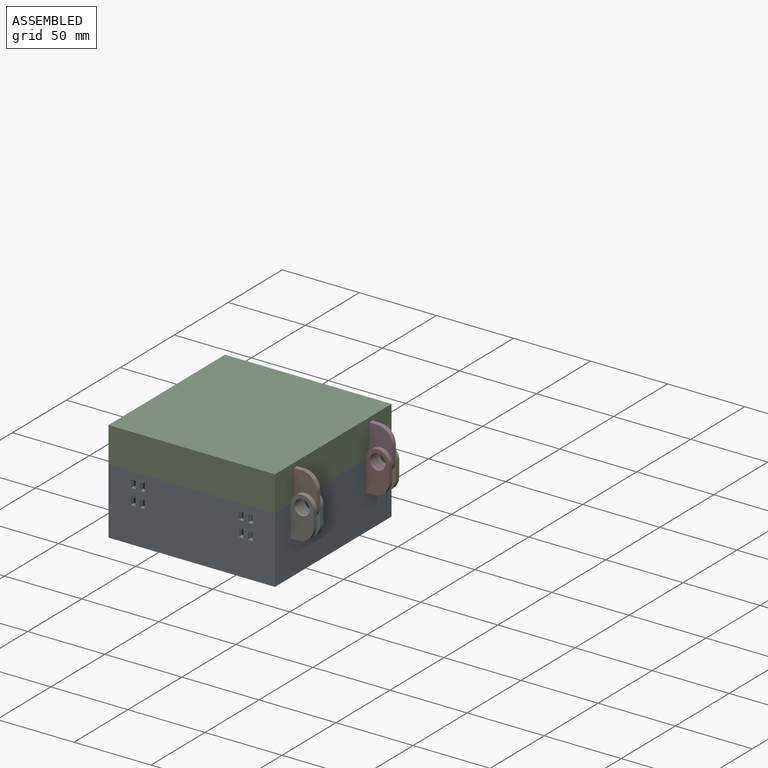
[diagram: assembled view]
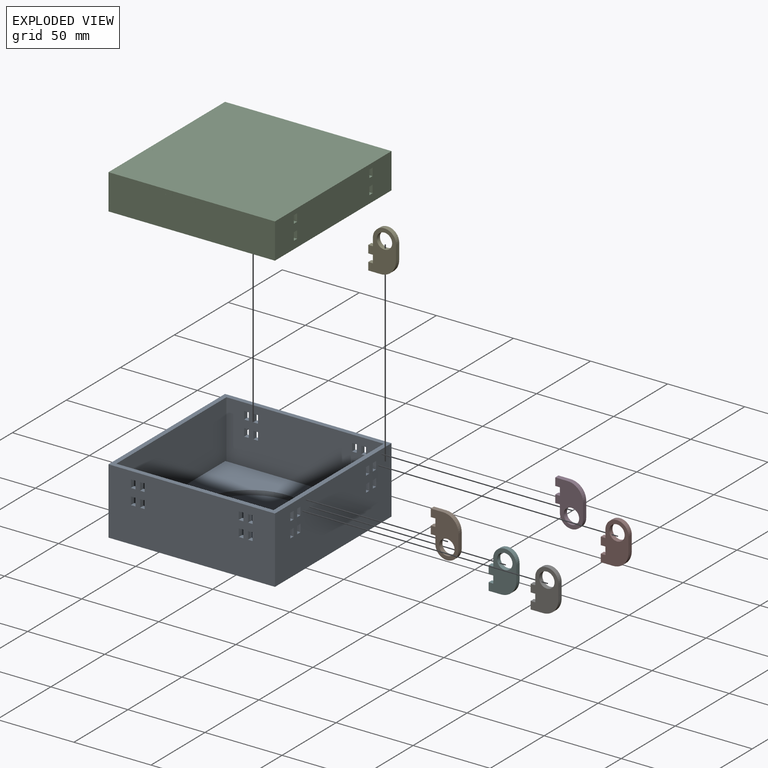
[diagram: exploded view]
GUIDED TOUR — MATED ASSEMBLY WITH SUBASSEMBLIES (Onshape document e2b8b47177cc14ec87fc11e5, AutoMate assembly e2b8b47177cc14ec87fc11e5_f6d41a9319d4d3f506f7b2a1_a9e725a522863f9b09eaa00e_default)

This assembly has 17 component occurrences arranged in 8 top-level units: 6 individual components plus 2 subassemblies (S0, S1). The tour has two levels: first the top level, where each subassembly is treated as one rigid unit; then each subassembly is toured internally in its own section (nesting deeper than one subassembly level is flattened into its subassembly's section).

Components are labeled P0..P16 across the whole record; subassembly units are labeled S0..S1. A mate is a constraint between two units; its type names the relative motion it leaves free:
  FASTENED — locks the two components together rigidly (no relative motion).
Axis/direction vectors are unit vectors and 'through' points are millimeter coordinates, both in the assembly's world frame.

TOP-LEVEL MATES (between units; each subassembly's internal mates are listed in its own section)
  1. FASTENED "Fastened 8": S0 <-> P12, direction (1.000, 0.000, 0.000) through (28.76, 32.40, -198.92) mm
  2. FASTENED "Fastened 3": P1 <-> S1, direction (-1.000, 0.000, 0.000) through (28.76, 35.60, -168.92) mm
  3. FASTENED "Fastened 1": S0 <-> S1, direction (0.000, 0.000, 1.000) through (28.76, 16.60, -183.92) mm
  4. FASTENED "Fastened 5": S0 <-> P14, direction (1.000, 0.000, 0.000) through (28.76, 102.40, -198.92) mm
  5. FASTENED "Fastened 2": S1 <-> P7, direction (1.000, 0.000, 0.000) through (28.76, 105.60, -168.92) mm
  6. FASTENED "Fastened 7": S0 <-> P11, direction (1.000, 0.000, 0.000) through (28.76, 38.80, -198.92) mm
  7. FASTENED "Fastened 4": P10 <-> S0, direction (0.000, 0.000, 1.000) through (28.76, 108.80, -198.92) mm

TOP-LEVEL ASSEMBLY ORDER
  1. S0 — the base component [order verified]
  2. P14 [order verified]
  3. P11 [order verified]
  4. S1 [order verified]
  5. P7 [order verified]
  6. P12 [order verified]
  7. P1 [order verified]
  8. P10 [order verified]
Order-tag legend:
  [order verified] — this step's position reverses a verified removal order: the component was checked to insert without passing through the ones already placed.

Of the 17 component occurrences, 16 carry the full construction recipe — the FeatureScript program that regenerates the part's solid from scratch; the rest are supplied as boundary geometry only. Each toured unit is shown spotlighted twice — assembled, then exploded with a leader line back to its socket (green = recipe-attached component, orange = geometry-only, blue = subassembly unit; the rest desaturated gray).
NOTE — document 2 of 3 of this assembly tour. The two overview renders and the header above are repeated from document 1; the component sections below continue where the previous document stopped.
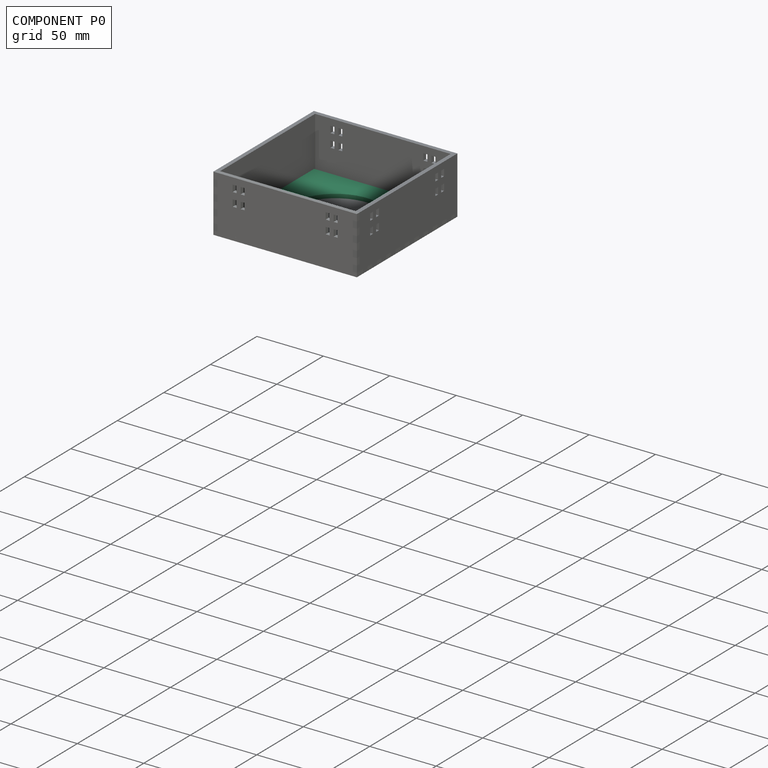
[diagram: component P0 — assembled]
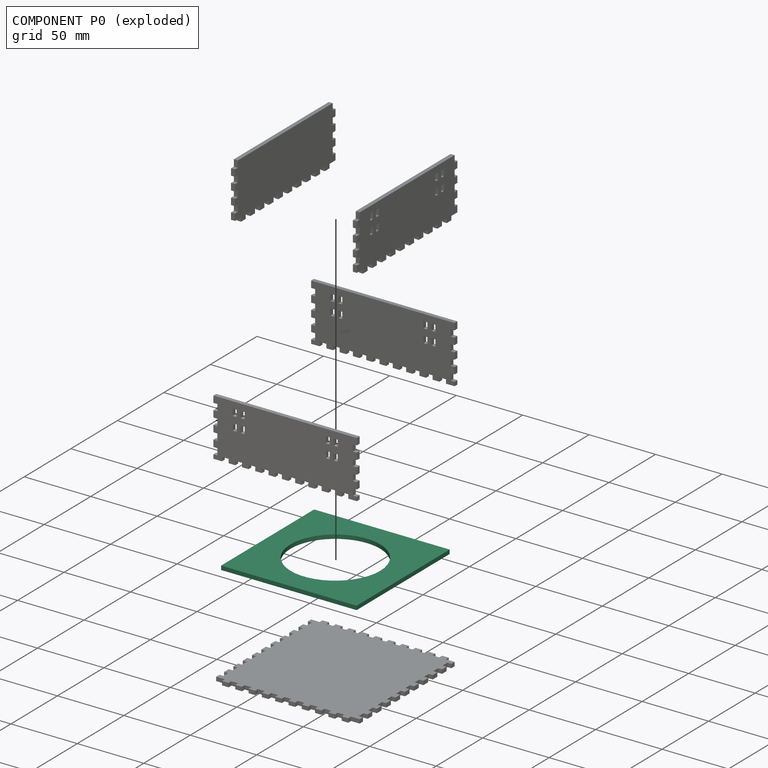
[diagram: component P0 — exploded]
COMPONENT P0 — recipe-attached (CADFS 00596912, mesh-verified: the recipe's output STEP matches this component's geometry to below the mesh-comparison resolution (tessellation chordal tolerance ~0.214 mm)).
Held by: FASTENED mate "Fastened 6" to P6; FASTENED mate "Fastened 6" to P6.
Construction recipe (FeatureScript — the CAD program that rebuilds this solid; sketch coordinates are in the units given by the * unit suffixes, e.g. mm):

FeatureScript 1511;
import(path : "onshape/std/geometry.fs", version : "1511.0");
import(path : "onshape/std/common.fs", version : "1511.0");
const mm = millimeter;
const VERTEX = EntityType.VERTEX;
const EDGE = EntityType.EDGE;
const FACE = EntityType.FACE;
const BODY = EntityType.BODY;
function v(x, y){return vector(x, y);}
function OD(order){return orderDisambiguation(order);}
function OSD(set){return originalSetDisambiguation(set);}
function TD(topology){return topologyDisambiguation(topology);}
function TDD(query){return trueDependencyDisambiguation(query);}
function sQuery(a, b, c) {return sketchEntityQuery(a, b, c);}

annotation { "Feature Type Name" : "Feature", "Feature Type Description" : "" }
export const myFeature = defineFeature(function(context is Context, id is Id, definition is map)
    precondition{}
    {
        {
            var Q0;
            Q0=qCreatedBy(makeId("Top.planeOp"),FACE);
            var sketch = newSketch(context, id + "F0", { "sketchPlane" : qUnion([Q0])});
            skCircle(sketch, "E0", {"center": v(0, 0) * mm, "radius": 33.75 * mm});
            skLineSegment(sketch, "E1.bottom", {"start": v(51, 50) * mm, "end": v(-51, 50) * mm});
            skLineSegment(sketch, "E1.top", {"start": v(51, -50) * mm, "end": v(-51, -50) * mm});
            skLineSegment(sketch, "E1.left", {"start": v(51, 50) * mm, "end": v(51, -50) * mm});
            skLineSegment(sketch, "E1.right", {"start": v(-51, 50) * mm, "end": v(-51, -50) * mm});
            skSolve(sketch);
        }
        {
            var Q0;
            Q0=makeQuery(id+"F0.imprint","IMPRINT",FACE,{"disambiguationData":[TD([[makeQuery(id+"F0.imprint","IMPRINT",EDGE,{"derivedFrom":sQuery(id+"F0.wireOp",EDGE,"E0")}),-1.0]])]});
            extrude(context, id + "F1", {"entities" : qUnion([Q0]), "depth" : 3 * mm, "offsetDistance" : 25 * mm});
        }
    });
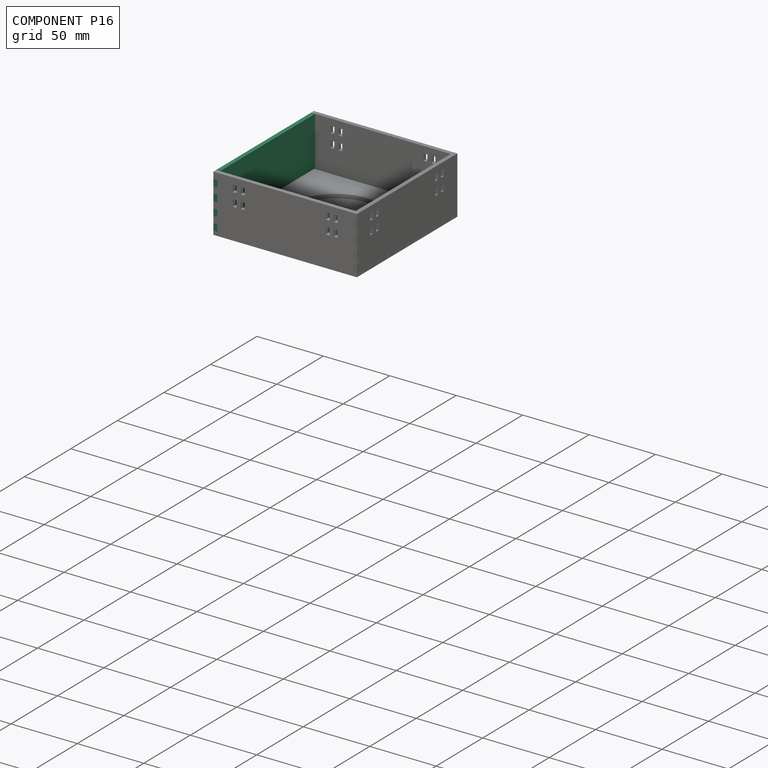
[diagram: component P16 — assembled]
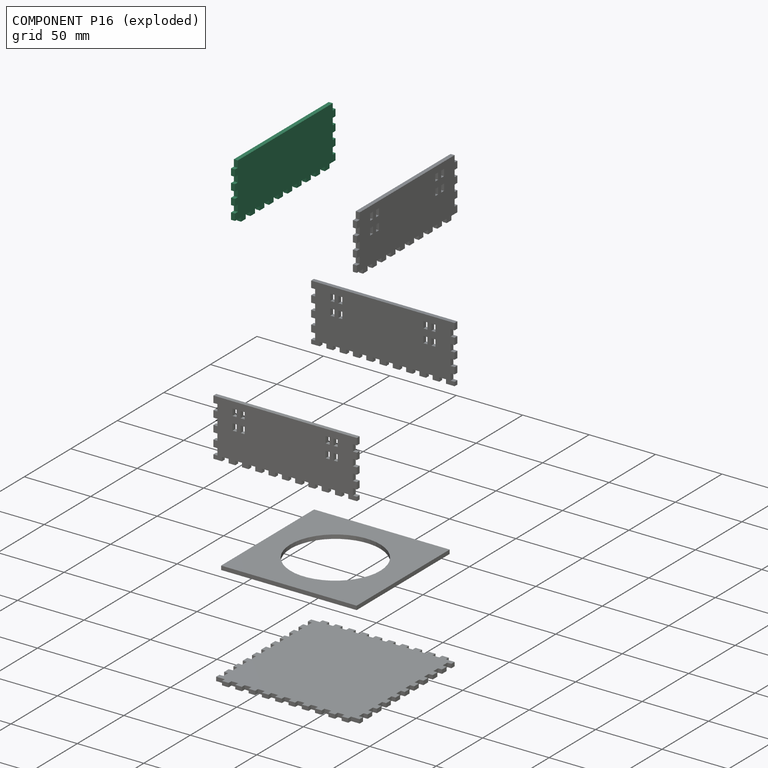
[diagram: component P16 — exploded]
COMPONENT P16 — recipe-attached (CADFS 00596913, mesh-verified: the recipe's output STEP matches this component's geometry to below the mesh-comparison resolution (tessellation chordal tolerance ~0.174 mm)).
Held by: FASTENED mate "Fastened 3" to P8; FASTENED mate "Fastened 3" to P8.
Construction recipe (FeatureScript — the CAD program that rebuilds this solid; sketch coordinates are in the units given by the * unit suffixes, e.g. mm):

FeatureScript 1511;
import(path : "onshape/std/geometry.fs", version : "1511.0");
import(path : "onshape/std/common.fs", version : "1511.0");
const mm = millimeter;
const VERTEX = EntityType.VERTEX;
const EDGE = EntityType.EDGE;
const FACE = EntityType.FACE;
const BODY = EntityType.BODY;
function v(x, y){return vector(x, y);}
function OD(order){return orderDisambiguation(order);}
function OSD(set){return originalSetDisambiguation(set);}
function TD(topology){return topologyDisambiguation(topology);}
function TDD(query){return trueDependencyDisambiguation(query);}
function sQuery(a, b, c) {return sketchEntityQuery(a, b, c);}

annotation { "Feature Type Name" : "Feature", "Feature Type Description" : "" }
export const myFeature = defineFeature(function(context is Context, id is Id, definition is map)
    precondition{}
    {
        {
            var Q0;
            Q0=qCreatedBy(makeId("Front.planeOp"),FACE);
            var sketch = newSketch(context, id + "F0", { "sketchPlane" : qUnion([Q0])});
            skLineSegment(sketch, "E0.bottom", {"start": v(51, 20) * mm, "end": v(-51, 20) * mm});
            skLineSegment(sketch, "E0.top", {"start": v(51, -20) * mm, "end": v(-51, -20) * mm});
            skLineSegment(sketch, "E0.left", {"start": v(51, 20) * mm, "end": v(51, -20) * mm});
            skLineSegment(sketch, "E0.right", {"start": v(-51, 20) * mm, "end": v(-51, -20) * mm});
            skPoint(sketch, "E0.middle", {"position": v(0, 0) * mm});
            skSolve(sketch);
        }
        {
            var Q0;
            Q0 = qSketchRegion(id + "F0", true);
            extrude(context, id + "F1", {"entities" : qUnion([Q0]), "depth" : 3 * mm, "offsetDistance" : 25 * mm});
        }
        {
            var Q0;
            Q0=makeQuery(id+"F1.opExtrude","CAP_FACE",FACE,{"disambiguationData":[OSD([sQuery(id+"F0.wireOp",EDGE,"E0.bottom"),sQuery(id+"F0.wireOp",EDGE,"E0.top"),sQuery(id+"F0.wireOp",EDGE,"E0.left"),sQuery(id+"F0.wireOp",EDGE,"E0.right")])],"isStart":false});
            var sketch = newSketch(context, id + "F2", { "sketchPlane" : qUnion([Q0])});
            skLineSegment(sketch, "E1.bottom", {"start": v(-51, -20) * mm, "end": v(-54, -20) * mm});
            skLineSegment(sketch, "E1.top", {"start": v(-51, -15) * mm, "end": v(-54, -15) * mm});
            skLineSegment(sketch, "E1.left", {"start": v(-51, -20) * mm, "end": v(-51, -15) * mm});
            skLineSegment(sketch, "E1.right", {"start": v(-54, -20) * mm, "end": v(-54, -15) * mm});
            skLineSegment(sketch, "E2.0.1.0", {"start": v(-51, -5) * mm, "end": v(-54, -5) * mm});
            skLineSegment(sketch, "E2.0.1.1", {"start": v(-54, -10) * mm, "end": v(-54, -5) * mm});
            skLineSegment(sketch, "E2.0.1.2", {"start": v(-51, -10) * mm, "end": v(-51, -5) * mm});
            skLineSegment(sketch, "E2.0.1.3", {"start": v(-51, -10) * mm, "end": v(-54, -10) * mm});
            skLineSegment(sketch, "E2.0.2.0", {"start": v(-51, 5) * mm, "end": v(-54, 5) * mm});
            skLineSegment(sketch, "E2.0.2.1", {"start": v(-54, 0) * mm, "end": v(-54, 5) * mm});
            skLineSegment(sketch, "E2.0.2.2", {"start": v(-51, 0) * mm, "end": v(-51, 5) * mm});
            skLineSegment(sketch, "E2.0.2.3", {"start": v(-51, 0) * mm, "end": v(-54, 0) * mm});
            skLineSegment(sketch, "E2.0.3.0", {"start": v(-51, 15) * mm, "end": v(-54, 15) * mm});
            skLineSegment(sketch, "E2.0.3.1", {"start": v(-54, 10) * mm, "end": v(-54, 15) * mm});
            skLineSegment(sketch, "E2.0.3.2", {"start": v(-51, 10) * mm, "end": v(-51, 15) * mm});
            skLineSegment(sketch, "E2.0.3.3", {"start": v(-51, 10) * mm, "end": v(-54, 10) * mm});
            skLineSegment(sketch, "E2.direction1", {"start": v(-54, -15) * mm, "end": v(-29, -15) * mm, "construction": true});
            skLineSegment(sketch, "E2.direction2", {"start": v(-54, -15) * mm, "end": v(-54, -5) * mm, "construction": true});
            skLineSegment(sketch, "E3.MirrorCS", {"start": v(54, -10) * mm, "end": v(54, -5) * mm});
            skLineSegment(sketch, "E4.MirrorCS", {"start": v(51, -5) * mm, "end": v(54, -5) * mm});
            skLineSegment(sketch, "E5.MirrorCS", {"start": v(51, -20) * mm, "end": v(51, -15) * mm});
            skLineSegment(sketch, "E6.MirrorCS", {"start": v(54, 10) * mm, "end": v(54, 15) * mm});
            skLineSegment(sketch, "E7.MirrorCS", {"start": v(51, -20) * mm, "end": v(54, -20) * mm});
            skLineSegment(sketch, "E8.MirrorCS", {"start": v(51, -15) * mm, "end": v(54, -15) * mm});
            skLineSegment(sketch, "E9.MirrorCS", {"start": v(54, -20) * mm, "end": v(54, -15) * mm});
            skLineSegment(sketch, "E10.MirrorCS", {"start": v(51, 15) * mm, "end": v(54, 15) * mm});
            skLineSegment(sketch, "E11.MirrorCS", {"start": v(51, 10) * mm, "end": v(54, 10) * mm});
            skLineSegment(sketch, "E12.MirrorCS", {"start": v(54, -15) * mm, "end": v(54, -5) * mm, "construction": true});
            skLineSegment(sketch, "E13.MirrorCS", {"start": v(51, 10) * mm, "end": v(51, 15) * mm});
            skLineSegment(sketch, "E14.MirrorCS", {"start": v(54, 0) * mm, "end": v(54, 5) * mm});
            skLineSegment(sketch, "E15.MirrorCS", {"start": v(51, 0) * mm, "end": v(51, 5) * mm});
            skLineSegment(sketch, "E16.MirrorCS", {"start": v(51, 0) * mm, "end": v(54, 0) * mm});
            skLineSegment(sketch, "E17.MirrorCS", {"start": v(51, -10) * mm, "end": v(51, -5) * mm});
            skLineSegment(sketch, "E18.MirrorCS", {"start": v(51, -10) * mm, "end": v(54, -10) * mm});
            skLineSegment(sketch, "E19.MirrorCS", {"start": v(51, 5) * mm, "end": v(54, 5) * mm});
            skSolve(sketch);
        }
        {
            var Q0;
            Q0 = qSketchRegion(id + "F2", true);
            extrude(context, id + "F3", {"entities" : qUnion([Q0]), "operationType" : NewBodyOperationType.ADD, "oppositeDirection" : true, "depth" : 3 * mm, "offsetDistance" : 25 * mm});
        }
        {
            var Q0;
            Q0=makeQuery(id+"F3.boolean.opBoolean","MERGE",FACE,{"derivedFrom":[makeQuery(id+"F1.opExtrude","CAP_FACE",FACE,{"disambiguationData":[OSD([sQuery(id+"F0.wireOp",EDGE,"E0.bottom"),sQuery(id+"F0.wireOp",EDGE,"E0.top"),sQuery(id+"F0.wireOp",EDGE,"E0.left"),sQuery(id+"F0.wireOp",EDGE,"E0.right")])],"isStart":false}),makeQuery(id+"F3.opExtrude","CAP_FACE",FACE,{"disambiguationData":[OSD([sQuery(id+"F2.wireOp",EDGE,"E1.bottom"),sQuery(id+"F2.wireOp",EDGE,"E1.top"),sQuery(id+"F2.wireOp",EDGE,"E1.left"),sQuery(id+"F2.wireOp",EDGE,"E1.right")])],"isStart":true}),makeQuery(id+"F3.opExtrude","CAP_FACE",FACE,{"disambiguationData":[OSD([sQuery(id+"F2.wireOp",EDGE,"E2.0.1.0"),sQuery(id+"F2.wireOp",EDGE,"E2.0.1.1"),sQuery(id+"F2.wireOp",EDGE,"E2.0.1.2"),sQuery(id+"F2.wireOp",EDGE,"E2.0.1.3")])],"isStart":true}),makeQuery(id+"F3.opExtrude","CAP_FACE",FACE,{"disambiguationData":[OSD([sQuery(id+"F2.wireOp",EDGE,"E2.0.2.0"),sQuery(id+"F2.wireOp",EDGE,"E2.0.2.1"),sQuery(id+"F2.wireOp",EDGE,"E2.0.2.2"),sQuery(id+"F2.wireOp",EDGE,"E2.0.2.3")])],"isStart":true}),makeQuery(id+"F3.opExtrude","CAP_FACE",FACE,{"disambiguationData":[OSD([sQuery(id+"F2.wireOp",EDGE,"E2.0.3.0"),sQuery(id+"F2.wireOp",EDGE,"E2.0.3.1"),sQuery(id+"F2.wireOp",EDGE,"E2.0.3.2"),sQuery(id+"F2.wireOp",EDGE,"E2.0.3.3")])],"isStart":true}),makeQuery(id+"F3.opExtrude","CAP_FACE",FACE,{"disambiguationData":[OSD([sQuery(id+"F2.wireOp",EDGE,"E3.MirrorCS"),sQuery(id+"F2.wireOp",EDGE,"E4.MirrorCS"),sQuery(id+"F2.wireOp",EDGE,"E17.MirrorCS"),sQuery(id+"F2.wireOp",EDGE,"E18.MirrorCS")])],"isStart":true}),makeQuery(id+"F3.opExtrude","CAP_FACE",FACE,{"disambiguationData":[OSD([sQuery(id+"F2.wireOp",EDGE,"E5.MirrorCS"),sQuery(id+"F2.wireOp",EDGE,"E7.MirrorCS"),sQuery(id+"F2.wireOp",EDGE,"E8.MirrorCS"),sQuery(id+"F2.wireOp",EDGE,"E9.MirrorCS")])],"isStart":true}),makeQuery(id+"F3.opExtrude","CAP_FACE",FACE,{"disambiguationData":[OSD([sQuery(id+"F2.wireOp",EDGE,"E6.MirrorCS"),sQuery(id+"F2.wireOp",EDGE,"E10.MirrorCS"),sQuery(id+"F2.wireOp",EDGE,"E11.MirrorCS"),sQuery(id+"F2.wireOp",EDGE,"E13.MirrorCS")])],"isStart":true}),makeQuery(id+"F3.opExtrude","CAP_FACE",FACE,{"disambiguationData":[OSD([sQuery(id+"F2.wireOp",EDGE,"E14.MirrorCS"),sQuery(id+"F2.wireOp",EDGE,"E15.MirrorCS"),sQuery(id+"F2.wireOp",EDGE,"E16.MirrorCS"),sQuery(id+"F2.wireOp",EDGE,"E19.MirrorCS")])],"isStart":true})]});
            var sketch = newSketch(context, id + "F4", { "sketchPlane" : qUnion([Q0])});
            skLineSegment(sketch, "E20", {"start": v(0, -20) * mm, "end": v(0, -23) * mm, "construction": true});
            skPoint(sketch, "E20.endSnap0", {"position": v(0, -20) * mm});
            skLineSegment(sketch, "E21", {"start": v(0, -23) * mm, "end": v(2.5, -23) * mm, "construction": true});
            skLineSegment(sketch, "E22.bottom", {"start": v(2.5, -23) * mm, "end": v(7.5, -23) * mm});
            skLineSegment(sketch, "E22.top", {"start": v(2.5, -20) * mm, "end": v(7.5, -20) * mm});
            skLineSegment(sketch, "E22.left", {"start": v(2.5, -23) * mm, "end": v(2.5, -20) * mm});
            skLineSegment(sketch, "E22.right", {"start": v(7.5, -23) * mm, "end": v(7.5, -20) * mm});
            skLineSegment(sketch, "E23.1.0.0", {"start": v(12.5, -23) * mm, "end": v(17.5, -23) * mm});
            skLineSegment(sketch, "E23.1.0.1", {"start": v(12.5, -23) * mm, "end": v(12.5, -20) * mm});
            skLineSegment(sketch, "E23.1.0.2", {"start": v(17.5, -23) * mm, "end": v(17.5, -20) * mm});
            skLineSegment(sketch, "E23.1.0.3", {"start": v(12.5, -20) * mm, "end": v(17.5, -20) * mm});
            skLineSegment(sketch, "E23.2.0.0", {"start": v(22.5, -23) * mm, "end": v(27.5, -23) * mm});
            skLineSegment(sketch, "E23.2.0.1", {"start": v(22.5, -23) * mm, "end": v(22.5, -20) * mm});
            skLineSegment(sketch, "E23.2.0.2", {"start": v(27.5, -23) * mm, "end": v(27.5, -20) * mm});
            skLineSegment(sketch, "E23.2.0.3", {"start": v(22.5, -20) * mm, "end": v(27.5, -20) * mm});
            skLineSegment(sketch, "E23.3.0.0", {"start": v(32.5, -23) * mm, "end": v(37.5, -23) * mm});
            skLineSegment(sketch, "E23.3.0.1", {"start": v(32.5, -23) * mm, "end": v(32.5, -20) * mm});
            skLineSegment(sketch, "E23.3.0.2", {"start": v(37.5, -23) * mm, "end": v(37.5, -20) * mm});
            skLineSegment(sketch, "E23.3.0.3", {"start": v(32.5, -20) * mm, "end": v(37.5, -20) * mm});
            skLineSegment(sketch, "E23.4.0.0", {"start": v(42.5, -23) * mm, "end": v(47.5, -23) * mm});
            skLineSegment(sketch, "E23.4.0.1", {"start": v(42.5, -23) * mm, "end": v(42.5, -20) * mm});
            skLineSegment(sketch, "E23.4.0.2", {"start": v(47.5, -23) * mm, "end": v(47.5, -20) * mm});
            skLineSegment(sketch, "E23.4.0.3", {"start": v(42.5, -20) * mm, "end": v(47.5, -20) * mm});
            skLineSegment(sketch, "E23.direction1", {"start": v(2.5, -23) * mm, "end": v(12.5, -23) * mm, "construction": true});
            skLineSegment(sketch, "E24.MirrorCS", {"start": v(-27.5, -23) * mm, "end": v(-27.5, -20) * mm});
            skLineSegment(sketch, "E25.MirrorCS", {"start": v(-22.5, -23) * mm, "end": v(-22.5, -20) * mm});
            skLineSegment(sketch, "E26.MirrorCS", {"start": v(-17.5, -23) * mm, "end": v(-17.5, -20) * mm});
            skLineSegment(sketch, "E27.MirrorCS", {"start": v(-12.5, -23) * mm, "end": v(-12.5, -20) * mm});
            skLineSegment(sketch, "E28.MirrorCS", {"start": v(-7.5, -23) * mm, "end": v(-7.5, -20) * mm});
            skLineSegment(sketch, "E29.MirrorCS", {"start": v(-2.5, -23) * mm, "end": v(-2.5, -20) * mm});
            skLineSegment(sketch, "E30.MirrorCS", {"start": v(-32.5, -23) * mm, "end": v(-32.5, -20) * mm});
            skLineSegment(sketch, "E31.MirrorCS", {"start": v(-47.5, -23) * mm, "end": v(-47.5, -20) * mm});
            skLineSegment(sketch, "E32.MirrorCS", {"start": v(-37.5, -23) * mm, "end": v(-37.5, -20) * mm});
            skLineSegment(sketch, "E33.MirrorCS", {"start": v(-42.5, -23) * mm, "end": v(-42.5, -20) * mm});
            skLineSegment(sketch, "E34.MirrorCS", {"start": v(-2.5, -23) * mm, "end": v(-7.5, -23) * mm});
            skLineSegment(sketch, "E35.MirrorCS", {"start": v(-32.5, -20) * mm, "end": v(-37.5, -20) * mm});
            skLineSegment(sketch, "E36.MirrorCS", {"start": v(-42.5, -20) * mm, "end": v(-47.5, -20) * mm});
            skLineSegment(sketch, "E37.MirrorCS", {"start": v(-22.5, -23) * mm, "end": v(-27.5, -23) * mm});
            skLineSegment(sketch, "E38.MirrorCS", {"start": v(-12.5, -20) * mm, "end": v(-17.5, -20) * mm});
            skLineSegment(sketch, "E39.MirrorCS", {"start": v(-12.5, -23) * mm, "end": v(-17.5, -23) * mm});
            skLineSegment(sketch, "E40.MirrorCS", {"start": v(-2.5, -20) * mm, "end": v(-7.5, -20) * mm});
            skLineSegment(sketch, "E41.MirrorCS", {"start": v(-32.5, -23) * mm, "end": v(-37.5, -23) * mm});
            skLineSegment(sketch, "E42.MirrorCS", {"start": v(-22.5, -20) * mm, "end": v(-27.5, -20) * mm});
            skLineSegment(sketch, "E43.MirrorCS", {"start": v(-42.5, -23) * mm, "end": v(-47.5, -23) * mm});
            skLineSegment(sketch, "E44.MirrorCS", {"start": v(-2.5, -23) * mm, "end": v(-12.5, -23) * mm, "construction": true});
            skSolve(sketch);
        }
        {
            var Q0;
            Q0 = qSketchRegion(id + "F4", true);
            extrude(context, id + "F5", {"entities" : qUnion([Q0]), "operationType" : NewBodyOperationType.ADD, "oppositeDirection" : true, "depth" : 3 * mm, "offsetDistance" : 25 * mm});
        }
    });
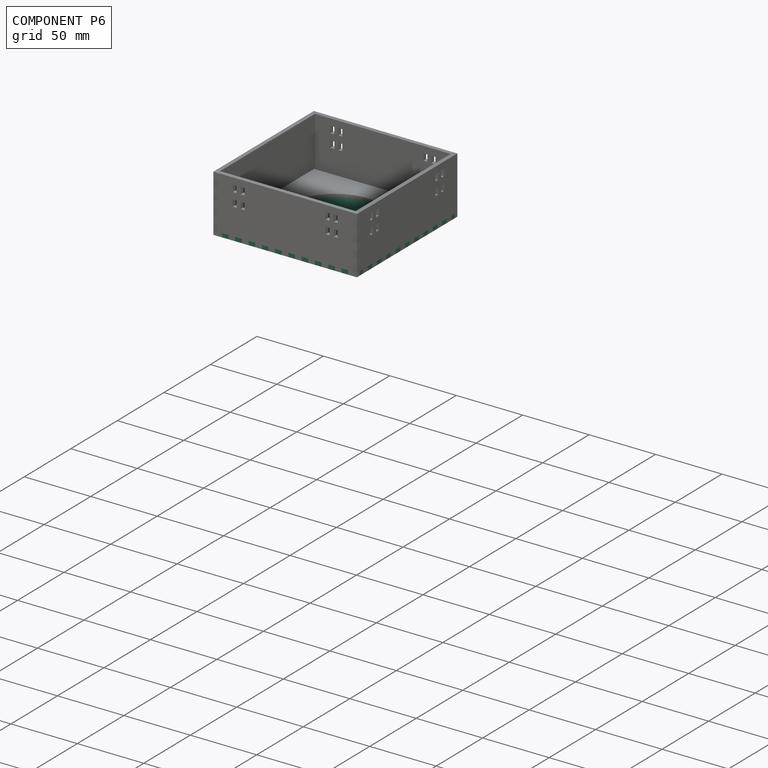
[diagram: component P6 — assembled]
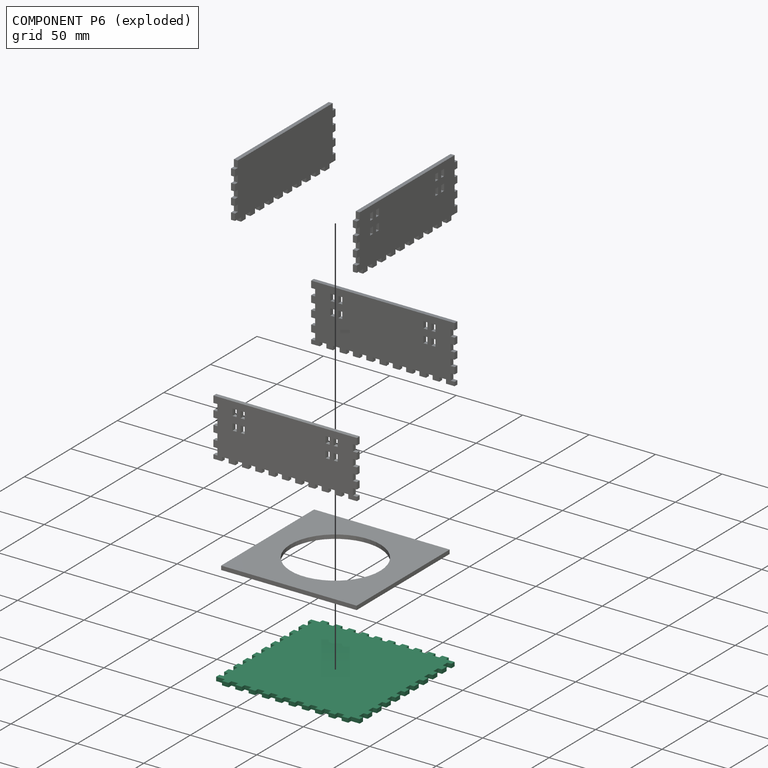
[diagram: component P6 — exploded]
COMPONENT P6 — recipe-attached (CADFS 00596922, mesh-verified: the recipe's output STEP matches this component's geometry to below the mesh-comparison resolution (tessellation chordal tolerance ~0.229 mm)).
Held by: FASTENED mate "Fastened 6" to P0; FASTENED mate "Fastened 6" to P2; FASTENED mate "Fastened 6" to P0.
Construction recipe (FeatureScript — the CAD program that rebuilds this solid; sketch coordinates are in the units given by the * unit suffixes, e.g. mm):

FeatureScript 1511;
import(path : "onshape/std/geometry.fs", version : "1511.0");
import(path : "onshape/std/common.fs", version : "1511.0");
const mm = millimeter;
const VERTEX = EntityType.VERTEX;
const EDGE = EntityType.EDGE;
const FACE = EntityType.FACE;
const BODY = EntityType.BODY;
function v(x, y){return vector(x, y);}
function OD(order){return orderDisambiguation(order);}
function OSD(set){return originalSetDisambiguation(set);}
function TD(topology){return topologyDisambiguation(topology);}
function TDD(query){return trueDependencyDisambiguation(query);}
function sQuery(a, b, c) {return sketchEntityQuery(a, b, c);}

annotation { "Feature Type Name" : "Feature", "Feature Type Description" : "" }
export const myFeature = defineFeature(function(context is Context, id is Id, definition is map)
    precondition{}
    {
        {
            var Q0;
            Q0=qCreatedBy(makeId("Top.planeOp"),FACE);
            var sketch = newSketch(context, id + "F0", { "sketchPlane" : qUnion([Q0])});
            skLineSegment(sketch, "E0.bottom", {"start": v(51, 51) * mm, "end": v(-51, 51) * mm});
            skLineSegment(sketch, "E0.top", {"start": v(51, -51) * mm, "end": v(-51, -51) * mm});
            skLineSegment(sketch, "E0.left", {"start": v(51, 51) * mm, "end": v(51, -51) * mm});
            skLineSegment(sketch, "E0.right", {"start": v(-51, 51) * mm, "end": v(-51, -51) * mm});
            skPoint(sketch, "E0.middle", {"position": v(0, 0) * mm});
            skSolve(sketch);
        }
        {
            var Q0;
            Q0 = qSketchRegion(id + "F0", true);
            extrude(context, id + "F1", {"entities" : qUnion([Q0]), "depth" : 3 * mm, "offsetDistance" : 25 * mm});
        }
        {
            var Q0;
            Q0=makeQuery(id+"F1.opExtrude","CAP_FACE",FACE,{"disambiguationData":[OSD([sQuery(id+"F0.wireOp",EDGE,"E0.bottom"),sQuery(id+"F0.wireOp",EDGE,"E0.top"),sQuery(id+"F0.wireOp",EDGE,"E0.left"),sQuery(id+"F0.wireOp",EDGE,"E0.right")])],"isStart":false});
            var sketch = newSketch(context, id + "F2", { "sketchPlane" : qUnion([Q0])});
            skLineSegment(sketch, "E1", {"start": v(0, 51) * mm, "end": v(0, 52.5) * mm, "construction": true});
            skPoint(sketch, "E1.endSnap0", {"position": v(0, 51) * mm});
            skLineSegment(sketch, "E2.bottom", {"start": v(2.5, 51) * mm, "end": v(-2.5, 51) * mm});
            skLineSegment(sketch, "E2.top", {"start": v(2.5, 54) * mm, "end": v(-2.5, 54) * mm});
            skLineSegment(sketch, "E2.left", {"start": v(2.5, 51) * mm, "end": v(2.5, 54) * mm});
            skLineSegment(sketch, "E2.right", {"start": v(-2.5, 51) * mm, "end": v(-2.5, 54) * mm});
            skPoint(sketch, "E2.middle", {"position": v(0, 52.5) * mm});
            skLineSegment(sketch, "E3.1.0.0", {"start": v(12.5, 54) * mm, "end": v(7.5, 54) * mm});
            skLineSegment(sketch, "E3.1.0.1", {"start": v(7.5, 51) * mm, "end": v(7.5, 54) * mm});
            skLineSegment(sketch, "E3.1.0.2", {"start": v(12.5, 51) * mm, "end": v(12.5, 54) * mm});
            skLineSegment(sketch, "E3.1.0.3", {"start": v(12.5, 51) * mm, "end": v(7.5, 51) * mm});
            skLineSegment(sketch, "E3.2.0.0", {"start": v(22.5, 54) * mm, "end": v(17.5, 54) * mm});
            skLineSegment(sketch, "E3.2.0.1", {"start": v(17.5, 51) * mm, "end": v(17.5, 54) * mm});
            skLineSegment(sketch, "E3.2.0.2", {"start": v(22.5, 51) * mm, "end": v(22.5, 54) * mm});
            skLineSegment(sketch, "E3.2.0.3", {"start": v(22.5, 51) * mm, "end": v(17.5, 51) * mm});
            skLineSegment(sketch, "E3.3.0.0", {"start": v(32.5, 54) * mm, "end": v(27.5, 54) * mm});
            skLineSegment(sketch, "E3.3.0.1", {"start": v(27.5, 51) * mm, "end": v(27.5, 54) * mm});
            skLineSegment(sketch, "E3.3.0.2", {"start": v(32.5, 51) * mm, "end": v(32.5, 54) * mm});
            skLineSegment(sketch, "E3.3.0.3", {"start": v(32.5, 51) * mm, "end": v(27.5, 51) * mm});
            skLineSegment(sketch, "E3.4.0.0", {"start": v(42.5, 54) * mm, "end": v(37.5, 54) * mm});
            skLineSegment(sketch, "E3.4.0.1", {"start": v(37.5, 51) * mm, "end": v(37.5, 54) * mm});
            skLineSegment(sketch, "E3.4.0.2", {"start": v(42.5, 51) * mm, "end": v(42.5, 54) * mm});
            skLineSegment(sketch, "E3.4.0.3", {"start": v(42.5, 51) * mm, "end": v(37.5, 51) * mm});
            skLineSegment(sketch, "E3.direction1", {"start": v(-2.5, 54) * mm, "end": v(7.5, 54) * mm, "construction": true});
            skLineSegment(sketch, "E4.MirrorCS", {"start": v(-12.5, 51) * mm, "end": v(-7.5, 51) * mm});
            skLineSegment(sketch, "E5.MirrorCS", {"start": v(-7.5, 51) * mm, "end": v(-7.5, 54) * mm});
            skLineSegment(sketch, "E6.MirrorCS", {"start": v(-12.5, 54) * mm, "end": v(-7.5, 54) * mm});
            skLineSegment(sketch, "E7.MirrorCS", {"start": v(-32.5, 51) * mm, "end": v(-32.5, 54) * mm});
            skLineSegment(sketch, "E8.MirrorCS", {"start": v(-27.5, 51) * mm, "end": v(-27.5, 54) * mm});
            skLineSegment(sketch, "E9.MirrorCS", {"start": v(-32.5, 54) * mm, "end": v(-27.5, 54) * mm});
            skLineSegment(sketch, "E10.MirrorCS", {"start": v(-42.5, 54) * mm, "end": v(-37.5, 54) * mm});
            skLineSegment(sketch, "E11.MirrorCS", {"start": v(-42.5, 51) * mm, "end": v(-42.5, 54) * mm});
            skLineSegment(sketch, "E12.MirrorCS", {"start": v(-32.5, 51) * mm, "end": v(-27.5, 51) * mm});
            skLineSegment(sketch, "E13.MirrorCS", {"start": v(-37.5, 51) * mm, "end": v(-37.5, 54) * mm});
            skLineSegment(sketch, "E14.MirrorCS", {"start": v(-42.5, 51) * mm, "end": v(-37.5, 51) * mm});
            skLineSegment(sketch, "E15.MirrorCS", {"start": v(-22.5, 51) * mm, "end": v(-17.5, 51) * mm});
            skLineSegment(sketch, "E16.MirrorCS", {"start": v(-22.5, 51) * mm, "end": v(-22.5, 54) * mm});
            skLineSegment(sketch, "E17.MirrorCS", {"start": v(-17.5, 51) * mm, "end": v(-17.5, 54) * mm});
            skLineSegment(sketch, "E18.MirrorCS", {"start": v(-22.5, 54) * mm, "end": v(-17.5, 54) * mm});
            skLineSegment(sketch, "E19.MirrorCS", {"start": v(-12.5, 51) * mm, "end": v(-12.5, 54) * mm});
            skLineSegment(sketch, "E20.MirrorCS", {"start": v(-7.5, -51) * mm, "end": v(-7.5, -54) * mm});
            skLineSegment(sketch, "E21.MirrorCS", {"start": v(0, -51) * mm, "end": v(0, -52.5) * mm, "construction": true});
            skLineSegment(sketch, "E22.MirrorCS", {"start": v(2.5, -51) * mm, "end": v(-2.5, -51) * mm});
            skLineSegment(sketch, "E23.MirrorCS", {"start": v(2.5, -54) * mm, "end": v(-2.5, -54) * mm});
            skLineSegment(sketch, "E24.MirrorCS", {"start": v(2.5, -51) * mm, "end": v(2.5, -54) * mm});
            skLineSegment(sketch, "E25.MirrorCS", {"start": v(-2.5, -51) * mm, "end": v(-2.5, -54) * mm});
            skLineSegment(sketch, "E26.MirrorCS", {"start": v(7.5, -51) * mm, "end": v(7.5, -54) * mm});
            skLineSegment(sketch, "E27.MirrorCS", {"start": v(42.5, -51) * mm, "end": v(42.5, -54) * mm});
            skLineSegment(sketch, "E28.MirrorCS", {"start": v(-17.5, -51) * mm, "end": v(-17.5, -54) * mm});
            skLineSegment(sketch, "E29.MirrorCS", {"start": v(-27.5, -51) * mm, "end": v(-27.5, -54) * mm});
            skLineSegment(sketch, "E30.MirrorCS", {"start": v(37.5, -51) * mm, "end": v(37.5, -54) * mm});
            skLineSegment(sketch, "E31.MirrorCS", {"start": v(-22.5, -51) * mm, "end": v(-22.5, -54) * mm});
            skLineSegment(sketch, "E32.MirrorCS", {"start": v(-12.5, -51) * mm, "end": v(-7.5, -51) * mm});
            skLineSegment(sketch, "E33.MirrorCS", {"start": v(-37.5, -51) * mm, "end": v(-37.5, -54) * mm});
            skLineSegment(sketch, "E34.MirrorCS", {"start": v(22.5, -51) * mm, "end": v(17.5, -51) * mm});
            skLineSegment(sketch, "E35.MirrorCS", {"start": v(-32.5, -51) * mm, "end": v(-32.5, -54) * mm});
            skLineSegment(sketch, "E36.MirrorCS", {"start": v(22.5, -51) * mm, "end": v(22.5, -54) * mm});
            skLineSegment(sketch, "E37.MirrorCS", {"start": v(17.5, -51) * mm, "end": v(17.5, -54) * mm});
            skLineSegment(sketch, "E38.MirrorCS", {"start": v(22.5, -54) * mm, "end": v(17.5, -54) * mm});
            skLineSegment(sketch, "E39.MirrorCS", {"start": v(12.5, -51) * mm, "end": v(7.5, -51) * mm});
            skLineSegment(sketch, "E40.MirrorCS", {"start": v(12.5, -51) * mm, "end": v(12.5, -54) * mm});
            skLineSegment(sketch, "E41.MirrorCS", {"start": v(-32.5, -51) * mm, "end": v(-27.5, -51) * mm});
            skLineSegment(sketch, "E42.MirrorCS", {"start": v(-12.5, -51) * mm, "end": v(-12.5, -54) * mm});
            skLineSegment(sketch, "E43.MirrorCS", {"start": v(-2.5, -54) * mm, "end": v(7.5, -54) * mm, "construction": true});
            skLineSegment(sketch, "E44.MirrorCS", {"start": v(-22.5, -51) * mm, "end": v(-17.5, -51) * mm});
            skLineSegment(sketch, "E45.MirrorCS", {"start": v(42.5, -54) * mm, "end": v(37.5, -54) * mm});
            skLineSegment(sketch, "E46.MirrorCS", {"start": v(-32.5, -54) * mm, "end": v(-27.5, -54) * mm});
            skLineSegment(sketch, "E47.MirrorCS", {"start": v(32.5, -54) * mm, "end": v(27.5, -54) * mm});
            skLineSegment(sketch, "E48.MirrorCS", {"start": v(27.5, -51) * mm, "end": v(27.5, -54) * mm});
            skLineSegment(sketch, "E49.MirrorCS", {"start": v(-22.5, -54) * mm, "end": v(-17.5, -54) * mm});
            skLineSegment(sketch, "E50.MirrorCS", {"start": v(-42.5, -51) * mm, "end": v(-42.5, -54) * mm});
            skLineSegment(sketch, "E51.MirrorCS", {"start": v(32.5, -51) * mm, "end": v(32.5, -54) * mm});
            skLineSegment(sketch, "E52.MirrorCS", {"start": v(42.5, -51) * mm, "end": v(37.5, -51) * mm});
            skLineSegment(sketch, "E53.MirrorCS", {"start": v(12.5, -54) * mm, "end": v(7.5, -54) * mm});
            skLineSegment(sketch, "E54.MirrorCS", {"start": v(-42.5, -51) * mm, "end": v(-37.5, -51) * mm});
            skLineSegment(sketch, "E55.MirrorCS", {"start": v(32.5, -51) * mm, "end": v(27.5, -51) * mm});
            skLineSegment(sketch, "E56.MirrorCS", {"start": v(-42.5, -54) * mm, "end": v(-37.5, -54) * mm});
            skLineSegment(sketch, "E57.MirrorCS", {"start": v(-12.5, -54) * mm, "end": v(-7.5, -54) * mm});
            skPoint(sketch, "E58.MirrorP", {"position": v(0, -52.5) * mm});
            skPoint(sketch, "E59.MirrorP", {"position": v(0, -51) * mm});
            skLineSegment(sketch, "E60", {"start": v(-42.5, 51) * mm, "end": v(-47.5, 51) * mm, "construction": true});
            skLineSegment(sketch, "E61.bottom", {"start": v(-47.5, 51) * mm, "end": v(-51, 51) * mm});
            skLineSegment(sketch, "E61.top", {"start": v(-47.5, 54) * mm, "end": v(-51, 54) * mm});
            skLineSegment(sketch, "E61.left", {"start": v(-47.5, 51) * mm, "end": v(-47.5, 54) * mm});
            skLineSegment(sketch, "E61.right", {"start": v(-51, 51) * mm, "end": v(-51, 54) * mm});
            skLineSegment(sketch, "E62.MirrorCS", {"start": v(47.5, 51) * mm, "end": v(51, 51) * mm});
            skLineSegment(sketch, "E63.MirrorCS", {"start": v(47.5, 54) * mm, "end": v(51, 54) * mm});
            skLineSegment(sketch, "E64.MirrorCS", {"start": v(47.5, 51) * mm, "end": v(47.5, 54) * mm});
            skLineSegment(sketch, "E65.MirrorCS", {"start": v(51, 51) * mm, "end": v(51, 54) * mm});
            skLineSegment(sketch, "E66.MirrorCS", {"start": v(51, -51) * mm, "end": v(51, -54) * mm});
            skLineSegment(sketch, "E67.MirrorCS", {"start": v(47.5, -51) * mm, "end": v(47.5, -54) * mm});
            skLineSegment(sketch, "E68.MirrorCS", {"start": v(47.5, -54) * mm, "end": v(51, -54) * mm});
            skLineSegment(sketch, "E69.MirrorCS", {"start": v(47.5, -51) * mm, "end": v(51, -51) * mm});
            skLineSegment(sketch, "E70.MirrorCS", {"start": v(-47.5, -51) * mm, "end": v(-51, -51) * mm});
            skLineSegment(sketch, "E71.MirrorCS", {"start": v(-47.5, -54) * mm, "end": v(-51, -54) * mm});
            skLineSegment(sketch, "E72.MirrorCS", {"start": v(-47.5, -51) * mm, "end": v(-47.5, -54) * mm});
            skLineSegment(sketch, "E73.MirrorCS", {"start": v(-51, -51) * mm, "end": v(-51, -54) * mm});
            skSolve(sketch);
        }
        {
            var Q0;
            Q0 = qSketchRegion(id + "F2", true);
            var Q1;
            Q1=makeQuery(id+"F1.opExtrude","CAP_FACE",FACE,{"disambiguationData":[OSD([sQuery(id+"F0.wireOp",EDGE,"E0.bottom"),sQuery(id+"F0.wireOp",EDGE,"E0.top"),sQuery(id+"F0.wireOp",EDGE,"E0.left"),sQuery(id+"F0.wireOp",EDGE,"E0.right")])],"isStart":true});
            extrude(context, id + "F3", {"entities" : qUnion([Q0]), "operationType" : NewBodyOperationType.ADD, "endBound" : BoundingType.UP_TO_SURFACE, "oppositeDirection" : true, "depth" : 25 * mm, "endBoundEntityFace" : qUnion([Q1]), "offsetDistance" : 25 * mm});
        }
        {
            var Q0;
            Q0=makeQuery(id+"F3.boolean.opBoolean","MERGE",FACE,{"derivedFrom":[makeQuery(id+"F1.opExtrude","CAP_FACE",FACE,{"disambiguationData":[OSD([sQuery(id+"F0.wireOp",EDGE,"E0.bottom"),sQuery(id+"F0.wireOp",EDGE,"E0.top"),sQuery(id+"F0.wireOp",EDGE,"E0.left"),sQuery(id+"F0.wireOp",EDGE,"E0.right")])],"isStart":false}),makeQuery(id+"F3.opExtrude","CAP_FACE",FACE,{"disambiguationData":[OSD([sQuery(id+"F2.wireOp",EDGE,"E2.bottom"),sQuery(id+"F2.wireOp",EDGE,"E2.top"),sQuery(id+"F2.wireOp",EDGE,"E2.left"),sQuery(id+"F2.wireOp",EDGE,"E2.right")])],"isStart":true}),makeQuery(id+"F3.opExtrude","CAP_FACE",FACE,{"disambiguationData":[OSD([sQuery(id+"F2.wireOp",EDGE,"E3.1.0.0"),sQuery(id+"F2.wireOp",EDGE,"E3.1.0.1"),sQuery(id+"F2.wireOp",EDGE,"E3.1.0.2"),sQuery(id+"F2.wireOp",EDGE,"E3.1.0.3")])],"isStart":true}),makeQuery(id+"F3.opExtrude","CAP_FACE",FACE,{"disambiguationData":[OSD([sQuery(id+"F2.wireOp",EDGE,"E3.2.0.0"),sQuery(id+"F2.wireOp",EDGE,"E3.2.0.1"),sQuery(id+"F2.wireOp",EDGE,"E3.2.0.2"),sQuery(id+"F2.wireOp",EDGE,"E3.2.0.3")])],"isStart":true}),makeQuery(id+"F3.opExtrude","CAP_FACE",FACE,{"disambiguationData":[OSD([sQuery(id+"F2.wireOp",EDGE,"E3.3.0.0"),sQuery(id+"F2.wireOp",EDGE,"E3.3.0.1"),sQuery(id+"F2.wireOp",EDGE,"E3.3.0.2"),sQuery(id+"F2.wireOp",EDGE,"E3.3.0.3")])],"isStart":true}),makeQuery(id+"F3.opExtrude","CAP_FACE",FACE,{"disambiguationData":[OSD([sQuery(id+"F2.wireOp",EDGE,"E3.4.0.0"),sQuery(id+"F2.wireOp",EDGE,"E3.4.0.1"),sQuery(id+"F2.wireOp",EDGE,"E3.4.0.2"),sQuery(id+"F2.wireOp",EDGE,"E3.4.0.3")])],"isStart":true}),makeQuery(id+"F3.opExtrude","CAP_FACE",FACE,{"disambiguationData":[OSD([sQuery(id+"F2.wireOp",EDGE,"E4.MirrorCS"),sQuery(id+"F2.wireOp",EDGE,"E5.MirrorCS"),sQuery(id+"F2.wireOp",EDGE,"E6.MirrorCS"),sQuery(id+"F2.wireOp",EDGE,"E19.MirrorCS")])],"isStart":true}),makeQuery(id+"F3.opExtrude","CAP_FACE",FACE,{"disambiguationData":[OSD([sQuery(id+"F2.wireOp",EDGE,"E7.MirrorCS"),sQuery(id+"F2.wireOp",EDGE,"E8.MirrorCS"),sQuery(id+"F2.wireOp",EDGE,"E9.MirrorCS"),sQuery(id+"F2.wireOp",EDGE,"E12.MirrorCS")])],"isStart":true}),makeQuery(id+"F3.opExtrude","CAP_FACE",FACE,{"disambiguationData":[OSD([sQuery(id+"F2.wireOp",EDGE,"E10.MirrorCS"),sQuery(id+"F2.wireOp",EDGE,"E11.MirrorCS"),sQuery(id+"F2.wireOp",EDGE,"E13.MirrorCS"),sQuery(id+"F2.wireOp",EDGE,"E14.MirrorCS")])],"isStart":true}),makeQuery(id+"F3.opExtrude","CAP_FACE",FACE,{"disambiguationData":[OSD([sQuery(id+"F2.wireOp",EDGE,"E15.MirrorCS"),sQuery(id+"F2.wireOp",EDGE,"E16.MirrorCS"),sQuery(id+"F2.wireOp",EDGE,"E17.MirrorCS"),sQuery(id+"F2.wireOp",EDGE,"E18.MirrorCS")])],"isStart":true}),makeQuery(id+"F3.opExtrude","CAP_FACE",FACE,{"disambiguationData":[OSD([sQuery(id+"F2.wireOp",EDGE,"E20.MirrorCS"),sQuery(id+"F2.wireOp",EDGE,"E32.MirrorCS"),sQuery(id+"F2.wireOp",EDGE,"E42.MirrorCS"),sQuery(id+"F2.wireOp",EDGE,"E57.MirrorCS")])],"isStart":true}),makeQuery(id+"F3.opExtrude","CAP_FACE",FACE,{"disambiguationData":[OSD([sQuery(id+"F2.wireOp",EDGE,"E22.MirrorCS"),sQuery(id+"F2.wireOp",EDGE,"E23.MirrorCS"),sQuery(id+"F2.wireOp",EDGE,"E24.MirrorCS"),sQuery(id+"F2.wireOp",EDGE,"E25.MirrorCS")])],"isStart":true}),makeQuery(id+"F3.opExtrude","CAP_FACE",FACE,{"disambiguationData":[OSD([sQuery(id+"F2.wireOp",EDGE,"E26.MirrorCS"),sQuery(id+"F2.wireOp",EDGE,"E39.MirrorCS"),sQuery(id+"F2.wireOp",EDGE,"E40.MirrorCS"),sQuery(id+"F2.wireOp",EDGE,"E53.MirrorCS")])],"isStart":true}),makeQuery(id+"F3.opExtrude","CAP_FACE",FACE,{"disambiguationData":[OSD([sQuery(id+"F2.wireOp",EDGE,"E27.MirrorCS"),sQuery(id+"F2.wireOp",EDGE,"E30.MirrorCS"),sQuery(id+"F2.wireOp",EDGE,"E45.MirrorCS"),sQuery(id+"F2.wireOp",EDGE,"E52.MirrorCS")])],"isStart":true}),makeQuery(id+"F3.opExtrude","CAP_FACE",FACE,{"disambiguationData":[OSD([sQuery(id+"F2.wireOp",EDGE,"E28.MirrorCS"),sQuery(id+"F2.wireOp",EDGE,"E31.MirrorCS"),sQuery(id+"F2.wireOp",EDGE,"E44.MirrorCS"),sQuery(id+"F2.wireOp",EDGE,"E49.MirrorCS")])],"isStart":true}),makeQuery(id+"F3.opExtrude","CAP_FACE",FACE,{"disambiguationData":[OSD([sQuery(id+"F2.wireOp",EDGE,"E29.MirrorCS"),sQuery(id+"F2.wireOp",EDGE,"E35.MirrorCS"),sQuery(id+"F2.wireOp",EDGE,"E41.MirrorCS"),sQuery(id+"F2.wireOp",EDGE,"E46.MirrorCS")])],"isStart":true}),makeQuery(id+"F3.opExtrude","CAP_FACE",FACE,{"disambiguationData":[OSD([sQuery(id+"F2.wireOp",EDGE,"E33.MirrorCS"),sQuery(id+"F2.wireOp",EDGE,"E50.MirrorCS"),sQuery(id+"F2.wireOp",EDGE,"E54.MirrorCS"),sQuery(id+"F2.wireOp",EDGE,"E56.MirrorCS")])],"isStart":true}),makeQuery(id+"F3.opExtrude","CAP_FACE",FACE,{"disambiguationData":[OSD([sQuery(id+"F2.wireOp",EDGE,"E34.MirrorCS"),sQuery(id+"F2.wireOp",EDGE,"E36.MirrorCS"),sQuery(id+"F2.wireOp",EDGE,"E37.MirrorCS"),sQuery(id+"F2.wireOp",EDGE,"E38.MirrorCS")])],"isStart":true}),makeQuery(id+"F3.opExtrude","CAP_FACE",FACE,{"disambiguationData":[OSD([sQuery(id+"F2.wireOp",EDGE,"E47.MirrorCS"),sQuery(id+"F2.wireOp",EDGE,"E48.MirrorCS"),sQuery(id+"F2.wireOp",EDGE,"E51.MirrorCS"),sQuery(id+"F2.wireOp",EDGE,"E55.MirrorCS")])],"isStart":true}),makeQuery(id+"F3.opExtrude","CAP_FACE",FACE,{"disambiguationData":[OSD([sQuery(id+"F2.wireOp",EDGE,"E61.bottom"),sQuery(id+"F2.wireOp",EDGE,"E61.top"),sQuery(id+"F2.wireOp",EDGE,"E61.left"),sQuery(id+"F2.wireOp",EDGE,"E61.right")])],"isStart":true}),makeQuery(id+"F3.opExtrude","CAP_FACE",FACE,{"disambiguationData":[OSD([sQuery(id+"F2.wireOp",EDGE,"E62.MirrorCS"),sQuery(id+"F2.wireOp",EDGE,"E63.MirrorCS"),sQuery(id+"F2.wireOp",EDGE,"E64.MirrorCS"),sQuery(id+"F2.wireOp",EDGE,"E65.MirrorCS")])],"isStart":true}),makeQuery(id+"F3.opExtrude","CAP_FACE",FACE,{"disambiguationData":[OSD([sQuery(id+"F2.wireOp",EDGE,"E66.MirrorCS"),sQuery(id+"F2.wireOp",EDGE,"E67.MirrorCS"),sQuery(id+"F2.wireOp",EDGE,"E68.MirrorCS"),sQuery(id+"F2.wireOp",EDGE,"E69.MirrorCS")])],"isStart":true}),makeQuery(id+"F3.opExtrude","CAP_FACE",FACE,{"disambiguationData":[OSD([sQuery(id+"F2.wireOp",EDGE,"E70.MirrorCS"),sQuery(id+"F2.wireOp",EDGE,"E71.MirrorCS"),sQuery(id+"F2.wireOp",EDGE,"E72.MirrorCS"),sQuery(id+"F2.wireOp",EDGE,"E73.MirrorCS")])],"isStart":true})]});
            var sketch = newSketch(context, id + "F4", { "sketchPlane" : qUnion([Q0])});
            skLineSegment(sketch, "E74", {"start": v(51, 0) * mm, "end": v(51, -2.5) * mm, "construction": true});
            skLineSegment(sketch, "E75.bottom", {"start": v(51, -2.5) * mm, "end": v(54, -2.5) * mm});
            skLineSegment(sketch, "E75.top", {"start": v(51, -7.5) * mm, "end": v(54, -7.5) * mm});
            skLineSegment(sketch, "E75.left", {"start": v(51, -2.5) * mm, "end": v(51, -7.5) * mm});
            skLineSegment(sketch, "E75.right", {"start": v(54, -2.5) * mm, "end": v(54, -7.5) * mm});
            skLineSegment(sketch, "E76.0.1.0", {"start": v(54, -12.5) * mm, "end": v(54, -17.5) * mm});
            skLineSegment(sketch, "E76.0.1.1", {"start": v(51, -12.5) * mm, "end": v(54, -12.5) * mm});
            skLineSegment(sketch, "E76.0.1.2", {"start": v(51, -17.5) * mm, "end": v(54, -17.5) * mm});
            skLineSegment(sketch, "E76.0.1.3", {"start": v(51, -12.5) * mm, "end": v(51, -17.5) * mm});
            skLineSegment(sketch, "E76.0.2.0", {"start": v(54, -22.5) * mm, "end": v(54, -27.5) * mm});
            skLineSegment(sketch, "E76.0.2.1", {"start": v(51, -22.5) * mm, "end": v(54, -22.5) * mm});
            skLineSegment(sketch, "E76.0.2.2", {"start": v(51, -27.5) * mm, "end": v(54, -27.5) * mm});
            skLineSegment(sketch, "E76.0.2.3", {"start": v(51, -22.5) * mm, "end": v(51, -27.5) * mm});
            skLineSegment(sketch, "E76.0.3.0", {"start": v(54, -32.5) * mm, "end": v(54, -37.5) * mm});
            skLineSegment(sketch, "E76.0.3.1", {"start": v(51, -32.5) * mm, "end": v(54, -32.5) * mm});
            skLineSegment(sketch, "E76.0.3.2", {"start": v(51, -37.5) * mm, "end": v(54, -37.5) * mm});
            skLineSegment(sketch, "E76.0.3.3", {"start": v(51, -32.5) * mm, "end": v(51, -37.5) * mm});
            skLineSegment(sketch, "E76.0.4.0", {"start": v(54, -42.5) * mm, "end": v(54, -47.5) * mm});
            skLineSegment(sketch, "E76.0.4.1", {"start": v(51, -42.5) * mm, "end": v(54, -42.5) * mm});
            skLineSegment(sketch, "E76.0.4.2", {"start": v(51, -47.5) * mm, "end": v(54, -47.5) * mm});
            skLineSegment(sketch, "E76.0.4.3", {"start": v(51, -42.5) * mm, "end": v(51, -47.5) * mm});
            skLineSegment(sketch, "E76.direction1", {"start": v(54, -7.5) * mm, "end": v(79, -7.5) * mm, "construction": true});
            skLineSegment(sketch, "E76.direction2", {"start": v(54, -7.5) * mm, "end": v(54, -17.5) * mm, "construction": true});
            skLineSegment(sketch, "E77.MirrorCS", {"start": v(54, 12.5) * mm, "end": v(54, 17.5) * mm});
            skLineSegment(sketch, "E78.MirrorCS", {"start": v(54, 42.5) * mm, "end": v(54, 47.5) * mm});
            skLineSegment(sketch, "E79.MirrorCS", {"start": v(51, 22.5) * mm, "end": v(51, 27.5) * mm});
            skLineSegment(sketch, "E80.MirrorCS", {"start": v(51, 27.5) * mm, "end": v(54, 27.5) * mm});
            skLineSegment(sketch, "E81.MirrorCS", {"start": v(51, 22.5) * mm, "end": v(54, 22.5) * mm});
            skLineSegment(sketch, "E82.MirrorCS", {"start": v(54, 22.5) * mm, "end": v(54, 27.5) * mm});
            skLineSegment(sketch, "E83.MirrorCS", {"start": v(51, 12.5) * mm, "end": v(51, 17.5) * mm});
            skLineSegment(sketch, "E84.MirrorCS", {"start": v(51, 17.5) * mm, "end": v(54, 17.5) * mm});
            skLineSegment(sketch, "E85.MirrorCS", {"start": v(51, 12.5) * mm, "end": v(54, 12.5) * mm});
            skLineSegment(sketch, "E86.MirrorCS", {"start": v(54, 2.5) * mm, "end": v(54, 7.5) * mm});
            skLineSegment(sketch, "E87.MirrorCS", {"start": v(51, 2.5) * mm, "end": v(51, 7.5) * mm});
            skLineSegment(sketch, "E88.MirrorCS", {"start": v(51, 7.5) * mm, "end": v(54, 7.5) * mm});
            skLineSegment(sketch, "E89.MirrorCS", {"start": v(51, 2.5) * mm, "end": v(54, 2.5) * mm});
            skLineSegment(sketch, "E90.MirrorCS", {"start": v(51, 37.5) * mm, "end": v(54, 37.5) * mm});
            skLineSegment(sketch, "E91.MirrorCS", {"start": v(51, 32.5) * mm, "end": v(54, 32.5) * mm});
            skLineSegment(sketch, "E92.MirrorCS", {"start": v(54, 32.5) * mm, "end": v(54, 37.5) * mm});
            skLineSegment(sketch, "E93.MirrorCS", {"start": v(51, 42.5) * mm, "end": v(51, 47.5) * mm});
            skLineSegment(sketch, "E94.MirrorCS", {"start": v(54, 7.5) * mm, "end": v(54, 17.5) * mm, "construction": true});
            skLineSegment(sketch, "E95.MirrorCS", {"start": v(51, 42.5) * mm, "end": v(54, 42.5) * mm});
            skLineSegment(sketch, "E96.MirrorCS", {"start": v(51, 47.5) * mm, "end": v(54, 47.5) * mm});
            skLineSegment(sketch, "E97.MirrorCS", {"start": v(51, 32.5) * mm, "end": v(51, 37.5) * mm});
            skLineSegment(sketch, "E98.MirrorCS", {"start": v(-54, -12.5) * mm, "end": v(-54, -17.5) * mm});
            skLineSegment(sketch, "E99.MirrorCS", {"start": v(-51, -2.5) * mm, "end": v(-54, -2.5) * mm});
            skLineSegment(sketch, "E100.MirrorCS", {"start": v(-51, 0) * mm, "end": v(-51, -2.5) * mm, "construction": true});
            skLineSegment(sketch, "E101.MirrorCS", {"start": v(-51, 17.5) * mm, "end": v(-54, 17.5) * mm});
            skLineSegment(sketch, "E102.MirrorCS", {"start": v(-51, 32.5) * mm, "end": v(-54, 32.5) * mm});
            skLineSegment(sketch, "E103.MirrorCS", {"start": v(-51, -22.5) * mm, "end": v(-51, -27.5) * mm});
            skLineSegment(sketch, "E104.MirrorCS", {"start": v(-51, -27.5) * mm, "end": v(-54, -27.5) * mm});
            skLineSegment(sketch, "E105.MirrorCS", {"start": v(-54, 22.5) * mm, "end": v(-54, 27.5) * mm});
            skLineSegment(sketch, "E106.MirrorCS", {"start": v(-51, -22.5) * mm, "end": v(-54, -22.5) * mm});
            skLineSegment(sketch, "E107.MirrorCS", {"start": v(-54, -22.5) * mm, "end": v(-54, -27.5) * mm});
            skLineSegment(sketch, "E108.MirrorCS", {"start": v(-51, -12.5) * mm, "end": v(-51, -17.5) * mm});
            skLineSegment(sketch, "E109.MirrorCS", {"start": v(-51, -17.5) * mm, "end": v(-54, -17.5) * mm});
            skLineSegment(sketch, "E110.MirrorCS", {"start": v(-51, -12.5) * mm, "end": v(-54, -12.5) * mm});
            skLineSegment(sketch, "E111.MirrorCS", {"start": v(-54, -2.5) * mm, "end": v(-54, -7.5) * mm});
            skLineSegment(sketch, "E112.MirrorCS", {"start": v(-51, -2.5) * mm, "end": v(-51, -7.5) * mm});
            skLineSegment(sketch, "E113.MirrorCS", {"start": v(-51, -7.5) * mm, "end": v(-54, -7.5) * mm});
            skLineSegment(sketch, "E114.MirrorCS", {"start": v(-51, -37.5) * mm, "end": v(-54, -37.5) * mm});
            skLineSegment(sketch, "E115.MirrorCS", {"start": v(-51, -32.5) * mm, "end": v(-54, -32.5) * mm});
            skLineSegment(sketch, "E116.MirrorCS", {"start": v(-54, -32.5) * mm, "end": v(-54, -37.5) * mm});
            skLineSegment(sketch, "E117.MirrorCS", {"start": v(-51, 12.5) * mm, "end": v(-54, 12.5) * mm});
            skLineSegment(sketch, "E118.MirrorCS", {"start": v(-54, 32.5) * mm, "end": v(-54, 37.5) * mm});
            skLineSegment(sketch, "E119.MirrorCS", {"start": v(-54, -7.5) * mm, "end": v(-54, -17.5) * mm, "construction": true});
            skLineSegment(sketch, "E120.MirrorCS", {"start": v(-51, 32.5) * mm, "end": v(-51, 37.5) * mm});
            skLineSegment(sketch, "E121.MirrorCS", {"start": v(-51, -32.5) * mm, "end": v(-51, -37.5) * mm});
            skLineSegment(sketch, "E122.MirrorCS", {"start": v(-51, 42.5) * mm, "end": v(-51, 47.5) * mm});
            skLineSegment(sketch, "E123.MirrorCS", {"start": v(-54, 12.5) * mm, "end": v(-54, 17.5) * mm});
            skLineSegment(sketch, "E124.MirrorCS", {"start": v(-54, 7.5) * mm, "end": v(-54, 17.5) * mm, "construction": true});
            skLineSegment(sketch, "E125.MirrorCS", {"start": v(-54, 42.5) * mm, "end": v(-54, 47.5) * mm});
            skLineSegment(sketch, "E126.MirrorCS", {"start": v(-54, -42.5) * mm, "end": v(-54, -47.5) * mm});
            skLineSegment(sketch, "E127.MirrorCS", {"start": v(-51, 42.5) * mm, "end": v(-54, 42.5) * mm});
            skLineSegment(sketch, "E128.MirrorCS", {"start": v(-51, 22.5) * mm, "end": v(-54, 22.5) * mm});
            skLineSegment(sketch, "E129.MirrorCS", {"start": v(-51, 22.5) * mm, "end": v(-51, 27.5) * mm});
            skLineSegment(sketch, "E130.MirrorCS", {"start": v(-51, -42.5) * mm, "end": v(-54, -42.5) * mm});
            skLineSegment(sketch, "E131.MirrorCS", {"start": v(-51, 7.5) * mm, "end": v(-54, 7.5) * mm});
            skLineSegment(sketch, "E132.MirrorCS", {"start": v(-51, 37.5) * mm, "end": v(-54, 37.5) * mm});
            skLineSegment(sketch, "E133.MirrorCS", {"start": v(-51, -47.5) * mm, "end": v(-54, -47.5) * mm});
            skLineSegment(sketch, "E134.MirrorCS", {"start": v(-51, 2.5) * mm, "end": v(-54, 2.5) * mm});
            skLineSegment(sketch, "E135.MirrorCS", {"start": v(-51, 47.5) * mm, "end": v(-54, 47.5) * mm});
            skLineSegment(sketch, "E136.MirrorCS", {"start": v(-51, 27.5) * mm, "end": v(-54, 27.5) * mm});
            skLineSegment(sketch, "E137.MirrorCS", {"start": v(-51, -42.5) * mm, "end": v(-51, -47.5) * mm});
            skLineSegment(sketch, "E138.MirrorCS", {"start": v(-51, 12.5) * mm, "end": v(-51, 17.5) * mm});
            skLineSegment(sketch, "E139.MirrorCS", {"start": v(-54, 2.5) * mm, "end": v(-54, 7.5) * mm});
            skLineSegment(sketch, "E140.MirrorCS", {"start": v(-51, 2.5) * mm, "end": v(-51, 7.5) * mm});
            skSolve(sketch);
        }
        {
            var Q0;
            Q0 = qSketchRegion(id + "F4", true);
            extrude(context, id + "F5", {"entities" : qUnion([Q0]), "operationType" : NewBodyOperationType.ADD, "oppositeDirection" : true, "depth" : 3 * mm, "offsetDistance" : 25 * mm});
        }
    });
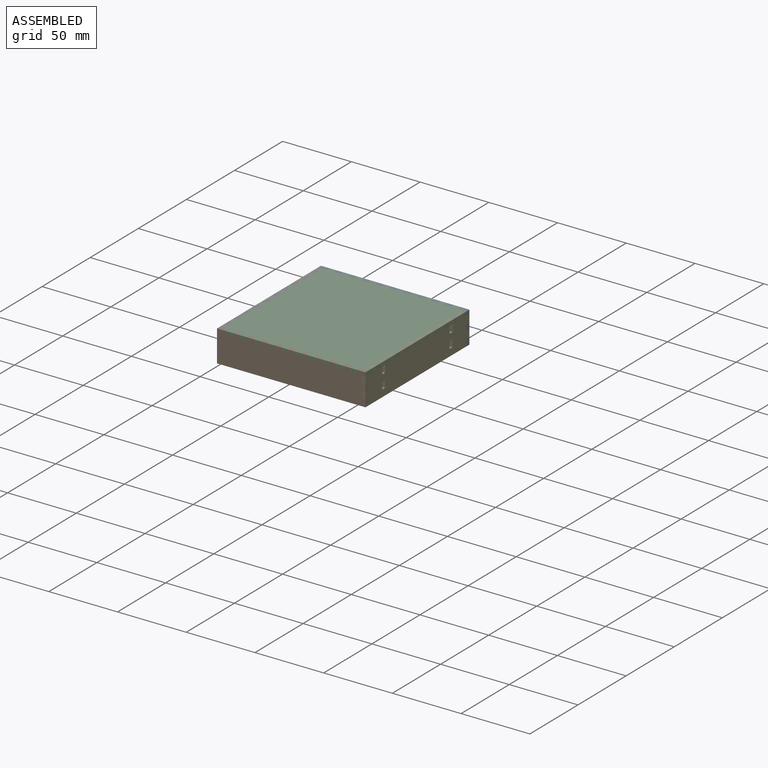
[diagram: subassembly S1 — assembled view]
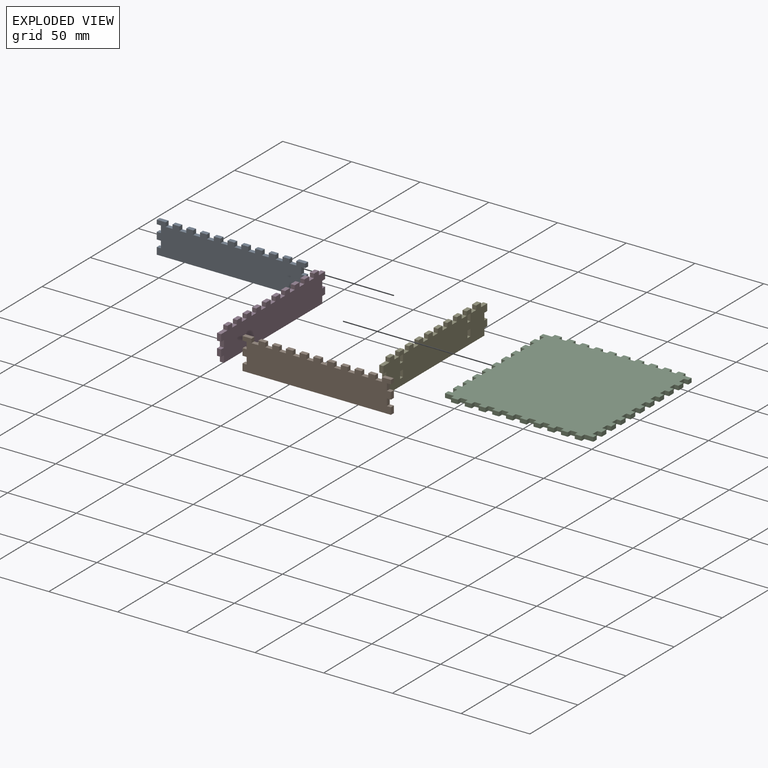
[diagram: subassembly S1 — exploded view]
SUBASSEMBLY S1 TOUR — 5 components, shown here in isolation at its own camera.

INTERNAL MATES
  1. FASTENED "Fastened 3": P4 <-> P13, direction (0.000, 0.000, 1.000) through (-77.74, 18.10, -178.92) mm
  2. FASTENED "Fastened 2": P4 <-> P15, direction (0.000, 0.000, 1.000) through (27.26, 18.10, -178.92) mm
  3. FASTENED "Fastened 1": P3 <-> P15, direction (0.000, 0.000, 1.000) through (27.26, 123.10, -178.92) mm
  4. FASTENED "Fastened 4": P5 <-> P13, direction (-1.000, 0.000, 0.000) through (-79.24, 118.10, -163.92) mm
  5. FASTENED "Fastened 3": P4 <-> P13, direction (0.000, 0.000, 1.000) through (-77.74, 18.10, -178.92) mm
  6. FASTENED "Fastened 2": P4 <-> P15, direction (0.000, 0.000, 1.000) through (27.26, 18.10, -178.92) mm
  7. FASTENED "Fastened 4": P5 <-> P13, direction (-1.000, 0.000, 0.000) through (-79.24, 118.10, -163.92) mm
  8. FASTENED "Fastened 1": P3 <-> P15, direction (0.000, 0.000, 1.000) through (27.26, 123.10, -178.92) mm

ASSEMBLY ORDER (within the subassembly)
  1. P13 — the base component [order verified]
  2. P4 [order verified]
  3. P15 [order verified]
  4. P3 [order verified]
  5. P5 [order verified]
Order-tag legend:
  [order verified] — this step's position reverses a verified removal order: the component was checked to insert without passing through the ones already placed.
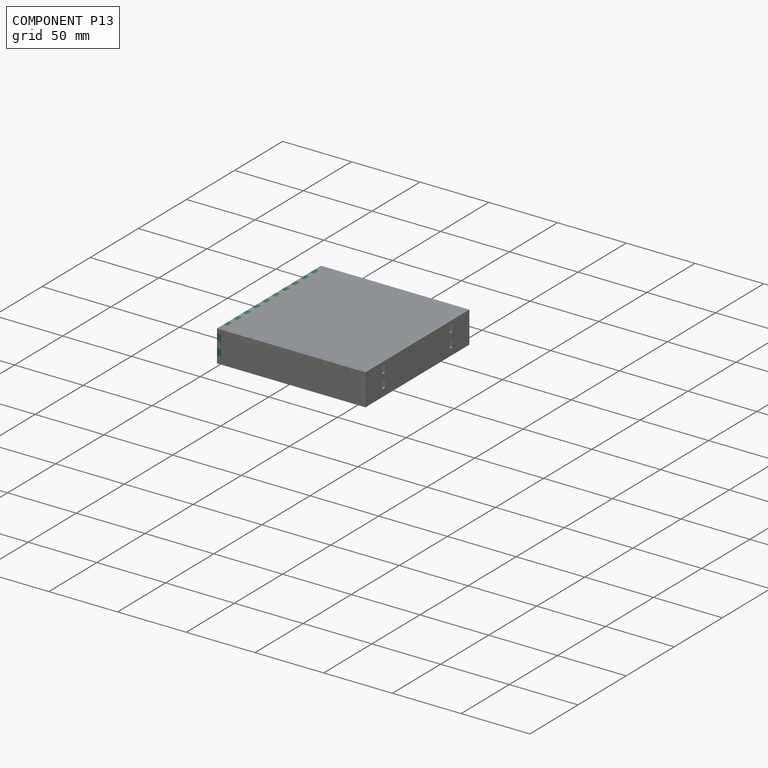
[diagram: component P13 — assembled]
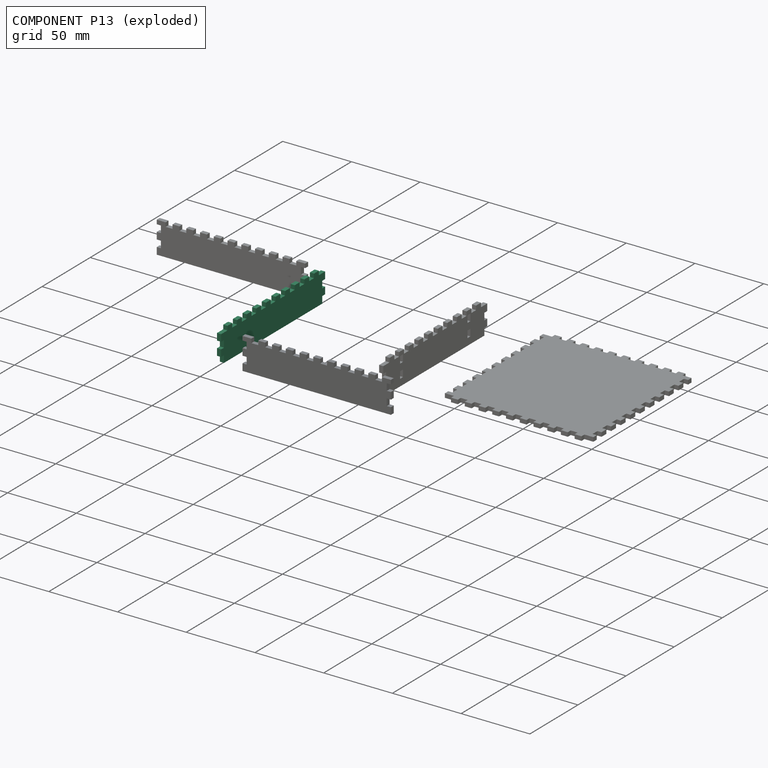
[diagram: component P13 — exploded]
COMPONENT P13 — recipe-attached (CADFS 00596915, mesh-verified: the recipe's output STEP matches this component's geometry to below the mesh-comparison resolution (tessellation chordal tolerance ~0.166 mm)).
Held by: FASTENED mate "Fastened 3" to P4; FASTENED mate "Fastened 4" to P5; FASTENED mate "Fastened 3" to P4; FASTENED mate "Fastened 4" to P5.
Construction recipe (FeatureScript — the CAD program that rebuilds this solid; sketch coordinates are in the units given by the * unit suffixes, e.g. mm):

FeatureScript 1511;
import(path : "onshape/std/geometry.fs", version : "1511.0");
import(path : "onshape/std/common.fs", version : "1511.0");
const mm = millimeter;
const VERTEX = EntityType.VERTEX;
const EDGE = EntityType.EDGE;
const FACE = EntityType.FACE;
const BODY = EntityType.BODY;
function v(x, y){return vector(x, y);}
function OD(order){return orderDisambiguation(order);}
function OSD(set){return originalSetDisambiguation(set);}
function TD(topology){return topologyDisambiguation(topology);}
function TDD(query){return trueDependencyDisambiguation(query);}
function sQuery(a, b, c) {return sketchEntityQuery(a, b, c);}

annotation { "Feature Type Name" : "Feature", "Feature Type Description" : "" }
export const myFeature = defineFeature(function(context is Context, id is Id, definition is map)
    precondition{}
    {
        {
            var Q0;
            Q0=qCreatedBy(makeId("Front.planeOp"),FACE);
            var sketch = newSketch(context, id + "F0", { "sketchPlane" : qUnion([Q0])});
            skLineSegment(sketch, "E0.bottom", {"start": v(51, 20) * mm, "end": v(-51, 20) * mm});
            skLineSegment(sketch, "E0.top", {"start": v(51, -20) * mm, "end": v(-51, -20) * mm});
            skLineSegment(sketch, "E0.left", {"start": v(51, 20) * mm, "end": v(51, -20) * mm});
            skLineSegment(sketch, "E0.right", {"start": v(-51, 20) * mm, "end": v(-51, -20) * mm});
            skPoint(sketch, "E0.middle", {"position": v(0, 0) * mm});
            skSolve(sketch);
        }
        {
            var Q0;
            Q0=qSketchRegion(id+"F0",true);
            extrude(context, id + "F1", {"entities" : qUnion([Q0]), "depth" : 3 * mm, "offsetDistance" : 25 * mm});
        }
        {
            var Q0;
            Q0=makeQuery(id+"F1.opExtrude","CAP_FACE",FACE,{"disambiguationData":[OSD([sQuery(id+"F0.wireOp",EDGE,"E0.bottom"),sQuery(id+"F0.wireOp",EDGE,"E0.top"),sQuery(id+"F0.wireOp",EDGE,"E0.left"),sQuery(id+"F0.wireOp",EDGE,"E0.right")])],"isStart":false});
            var sketch = newSketch(context, id + "F2", { "sketchPlane" : qUnion([Q0])});
            skLineSegment(sketch, "E1.bottom", {"start": v(-51, -20) * mm, "end": v(-54, -20) * mm});
            skLineSegment(sketch, "E1.top", {"start": v(-51, -15) * mm, "end": v(-54, -15) * mm});
            skLineSegment(sketch, "E1.left", {"start": v(-51, -20) * mm, "end": v(-51, -15) * mm});
            skLineSegment(sketch, "E1.right", {"start": v(-54, -20) * mm, "end": v(-54, -15) * mm});
            skLineSegment(sketch, "E2.0.1.0", {"start": v(-51, -5) * mm, "end": v(-54, -5) * mm});
            skLineSegment(sketch, "E2.0.1.1", {"start": v(-54, -10) * mm, "end": v(-54, -5) * mm});
            skLineSegment(sketch, "E2.0.1.2", {"start": v(-51, -10) * mm, "end": v(-51, -5) * mm});
            skLineSegment(sketch, "E2.0.1.3", {"start": v(-51, -10) * mm, "end": v(-54, -10) * mm});
            skLineSegment(sketch, "E2.0.2.0", {"start": v(-51, 5) * mm, "end": v(-54, 5) * mm});
            skLineSegment(sketch, "E2.0.2.1", {"start": v(-54, 0) * mm, "end": v(-54, 5) * mm});
            skLineSegment(sketch, "E2.0.2.2", {"start": v(-51, 0) * mm, "end": v(-51, 5) * mm});
            skLineSegment(sketch, "E2.0.2.3", {"start": v(-51, 0) * mm, "end": v(-54, 0) * mm});
            skLineSegment(sketch, "E2.0.3.0", {"start": v(-51, 15) * mm, "end": v(-54, 15) * mm});
            skLineSegment(sketch, "E2.0.3.1", {"start": v(-54, 10) * mm, "end": v(-54, 15) * mm});
            skLineSegment(sketch, "E2.0.3.2", {"start": v(-51, 10) * mm, "end": v(-51, 15) * mm});
            skLineSegment(sketch, "E2.0.3.3", {"start": v(-51, 10) * mm, "end": v(-54, 10) * mm});
            skLineSegment(sketch, "E2.direction1", {"start": v(-54, -15) * mm, "end": v(-29, -15) * mm, "construction": true});
            skLineSegment(sketch, "E2.direction2", {"start": v(-54, -15) * mm, "end": v(-54, -5) * mm, "construction": true});
            skLineSegment(sketch, "E3.MirrorCS", {"start": v(54, -10) * mm, "end": v(54, -5) * mm});
            skLineSegment(sketch, "E4.MirrorCS", {"start": v(51, -5) * mm, "end": v(54, -5) * mm});
            skLineSegment(sketch, "E5.MirrorCS", {"start": v(51, -20) * mm, "end": v(51, -15) * mm});
            skLineSegment(sketch, "E6.MirrorCS", {"start": v(54, 10) * mm, "end": v(54, 15) * mm});
            skLineSegment(sketch, "E7.MirrorCS", {"start": v(51, -20) * mm, "end": v(54, -20) * mm});
            skLineSegment(sketch, "E8.MirrorCS", {"start": v(51, -15) * mm, "end": v(54, -15) * mm});
            skLineSegment(sketch, "E9.MirrorCS", {"start": v(54, -20) * mm, "end": v(54, -15) * mm});
            skLineSegment(sketch, "E10.MirrorCS", {"start": v(51, 15) * mm, "end": v(54, 15) * mm});
            skLineSegment(sketch, "E11.MirrorCS", {"start": v(51, 10) * mm, "end": v(54, 10) * mm});
            skLineSegment(sketch, "E12.MirrorCS", {"start": v(54, -15) * mm, "end": v(54, -5) * mm, "construction": true});
            skLineSegment(sketch, "E13.MirrorCS", {"start": v(51, 10) * mm, "end": v(51, 15) * mm});
            skLineSegment(sketch, "E14.MirrorCS", {"start": v(54, 0) * mm, "end": v(54, 5) * mm});
            skLineSegment(sketch, "E15.MirrorCS", {"start": v(51, 0) * mm, "end": v(51, 5) * mm});
            skLineSegment(sketch, "E16.MirrorCS", {"start": v(51, 0) * mm, "end": v(54, 0) * mm});
            skLineSegment(sketch, "E17.MirrorCS", {"start": v(51, -10) * mm, "end": v(51, -5) * mm});
            skLineSegment(sketch, "E18.MirrorCS", {"start": v(51, -10) * mm, "end": v(54, -10) * mm});
            skLineSegment(sketch, "E19.MirrorCS", {"start": v(51, 5) * mm, "end": v(54, 5) * mm});
            skSolve(sketch);
        }
        {
            var Q0;
            Q0=qSketchRegion(id+"F2",true);
            extrude(context, id + "F3", {"entities" : qUnion([Q0]), "operationType" : NewBodyOperationType.ADD, "oppositeDirection" : true, "depth" : 3 * mm, "offsetDistance" : 25 * mm});
        }
        {
            var Q0;
            Q0=makeQuery(id+"F3.boolean.opBoolean","MERGE",FACE,{"derivedFrom":[makeQuery(id+"F1.opExtrude","CAP_FACE",FACE,{"disambiguationData":[OSD([sQuery(id+"F0.wireOp",EDGE,"E0.bottom"),sQuery(id+"F0.wireOp",EDGE,"E0.top"),sQuery(id+"F0.wireOp",EDGE,"E0.left"),sQuery(id+"F0.wireOp",EDGE,"E0.right")])],"isStart":false}),makeQuery(id+"F3.opExtrude","CAP_FACE",FACE,{"disambiguationData":[OSD([sQuery(id+"F2.wireOp",EDGE,"E1.bottom"),sQuery(id+"F2.wireOp",EDGE,"E1.top"),sQuery(id+"F2.wireOp",EDGE,"E1.left"),sQuery(id+"F2.wireOp",EDGE,"E1.right")])],"isStart":true}),makeQuery(id+"F3.opExtrude","CAP_FACE",FACE,{"disambiguationData":[OSD([sQuery(id+"F2.wireOp",EDGE,"E2.0.1.0"),sQuery(id+"F2.wireOp",EDGE,"E2.0.1.1"),sQuery(id+"F2.wireOp",EDGE,"E2.0.1.2"),sQuery(id+"F2.wireOp",EDGE,"E2.0.1.3")])],"isStart":true}),makeQuery(id+"F3.opExtrude","CAP_FACE",FACE,{"disambiguationData":[OSD([sQuery(id+"F2.wireOp",EDGE,"E2.0.2.0"),sQuery(id+"F2.wireOp",EDGE,"E2.0.2.1"),sQuery(id+"F2.wireOp",EDGE,"E2.0.2.2"),sQuery(id+"F2.wireOp",EDGE,"E2.0.2.3")])],"isStart":true}),makeQuery(id+"F3.opExtrude","CAP_FACE",FACE,{"disambiguationData":[OSD([sQuery(id+"F2.wireOp",EDGE,"E2.0.3.0"),sQuery(id+"F2.wireOp",EDGE,"E2.0.3.1"),sQuery(id+"F2.wireOp",EDGE,"E2.0.3.2"),sQuery(id+"F2.wireOp",EDGE,"E2.0.3.3")])],"isStart":true}),makeQuery(id+"F3.opExtrude","CAP_FACE",FACE,{"disambiguationData":[OSD([sQuery(id+"F2.wireOp",EDGE,"E3.MirrorCS"),sQuery(id+"F2.wireOp",EDGE,"E4.MirrorCS"),sQuery(id+"F2.wireOp",EDGE,"E17.MirrorCS"),sQuery(id+"F2.wireOp",EDGE,"E18.MirrorCS")])],"isStart":true}),makeQuery(id+"F3.opExtrude","CAP_FACE",FACE,{"disambiguationData":[OSD([sQuery(id+"F2.wireOp",EDGE,"E5.MirrorCS"),sQuery(id+"F2.wireOp",EDGE,"E7.MirrorCS"),sQuery(id+"F2.wireOp",EDGE,"E8.MirrorCS"),sQuery(id+"F2.wireOp",EDGE,"E9.MirrorCS")])],"isStart":true}),makeQuery(id+"F3.opExtrude","CAP_FACE",FACE,{"disambiguationData":[OSD([sQuery(id+"F2.wireOp",EDGE,"E6.MirrorCS"),sQuery(id+"F2.wireOp",EDGE,"E10.MirrorCS"),sQuery(id+"F2.wireOp",EDGE,"E11.MirrorCS"),sQuery(id+"F2.wireOp",EDGE,"E13.MirrorCS")])],"isStart":true}),makeQuery(id+"F3.opExtrude","CAP_FACE",FACE,{"disambiguationData":[OSD([sQuery(id+"F2.wireOp",EDGE,"E14.MirrorCS"),sQuery(id+"F2.wireOp",EDGE,"E15.MirrorCS"),sQuery(id+"F2.wireOp",EDGE,"E16.MirrorCS"),sQuery(id+"F2.wireOp",EDGE,"E19.MirrorCS")])],"isStart":true})]});
            var sketch = newSketch(context, id + "F4", { "sketchPlane" : qUnion([Q0])});
            skLineSegment(sketch, "E20", {"start": v(0, -20) * mm, "end": v(0, -23) * mm, "construction": true});
            skPoint(sketch, "E20.endSnap0", {"position": v(0, -20) * mm});
            skLineSegment(sketch, "E21", {"start": v(0, -23) * mm, "end": v(2.5, -23) * mm, "construction": true});
            skLineSegment(sketch, "E22.bottom", {"start": v(2.5, -23) * mm, "end": v(7.5, -23) * mm});
            skLineSegment(sketch, "E22.top", {"start": v(2.5, -20) * mm, "end": v(7.5, -20) * mm});
            skLineSegment(sketch, "E22.left", {"start": v(2.5, -23) * mm, "end": v(2.5, -20) * mm});
            skLineSegment(sketch, "E22.right", {"start": v(7.5, -23) * mm, "end": v(7.5, -20) * mm});
            skLineSegment(sketch, "E23.1.0.0", {"start": v(12.5, -23) * mm, "end": v(17.5, -23) * mm});
            skLineSegment(sketch, "E23.1.0.1", {"start": v(12.5, -23) * mm, "end": v(12.5, -20) * mm});
            skLineSegment(sketch, "E23.1.0.2", {"start": v(17.5, -23) * mm, "end": v(17.5, -20) * mm});
            skLineSegment(sketch, "E23.1.0.3", {"start": v(12.5, -20) * mm, "end": v(17.5, -20) * mm});
            skLineSegment(sketch, "E23.2.0.0", {"start": v(22.5, -23) * mm, "end": v(27.5, -23) * mm});
            skLineSegment(sketch, "E23.2.0.1", {"start": v(22.5, -23) * mm, "end": v(22.5, -20) * mm});
            skLineSegment(sketch, "E23.2.0.2", {"start": v(27.5, -23) * mm, "end": v(27.5, -20) * mm});
            skLineSegment(sketch, "E23.2.0.3", {"start": v(22.5, -20) * mm, "end": v(27.5, -20) * mm});
            skLineSegment(sketch, "E23.3.0.0", {"start": v(32.5, -23) * mm, "end": v(37.5, -23) * mm});
            skLineSegment(sketch, "E23.3.0.1", {"start": v(32.5, -23) * mm, "end": v(32.5, -20) * mm});
            skLineSegment(sketch, "E23.3.0.2", {"start": v(37.5, -23) * mm, "end": v(37.5, -20) * mm});
            skLineSegment(sketch, "E23.3.0.3", {"start": v(32.5, -20) * mm, "end": v(37.5, -20) * mm});
            skLineSegment(sketch, "E23.4.0.0", {"start": v(42.5, -23) * mm, "end": v(47.5, -23) * mm});
            skLineSegment(sketch, "E23.4.0.1", {"start": v(42.5, -23) * mm, "end": v(42.5, -20) * mm});
            skLineSegment(sketch, "E23.4.0.2", {"start": v(47.5, -23) * mm, "end": v(47.5, -20) * mm});
            skLineSegment(sketch, "E23.4.0.3", {"start": v(42.5, -20) * mm, "end": v(47.5, -20) * mm});
            skLineSegment(sketch, "E23.direction1", {"start": v(2.5, -23) * mm, "end": v(12.5, -23) * mm, "construction": true});
            skLineSegment(sketch, "E24.MirrorCS", {"start": v(-27.5, -23) * mm, "end": v(-27.5, -20) * mm});
            skLineSegment(sketch, "E25.MirrorCS", {"start": v(-22.5, -23) * mm, "end": v(-22.5, -20) * mm});
            skLineSegment(sketch, "E26.MirrorCS", {"start": v(-17.5, -23) * mm, "end": v(-17.5, -20) * mm});
            skLineSegment(sketch, "E27.MirrorCS", {"start": v(-12.5, -23) * mm, "end": v(-12.5, -20) * mm});
            skLineSegment(sketch, "E28.MirrorCS", {"start": v(-7.5, -23) * mm, "end": v(-7.5, -20) * mm});
            skLineSegment(sketch, "E29.MirrorCS", {"start": v(-2.5, -23) * mm, "end": v(-2.5, -20) * mm});
            skLineSegment(sketch, "E30.MirrorCS", {"start": v(-32.5, -23) * mm, "end": v(-32.5, -20) * mm});
            skLineSegment(sketch, "E31.MirrorCS", {"start": v(-47.5, -23) * mm, "end": v(-47.5, -20) * mm});
            skLineSegment(sketch, "E32.MirrorCS", {"start": v(-37.5, -23) * mm, "end": v(-37.5, -20) * mm});
            skLineSegment(sketch, "E33.MirrorCS", {"start": v(-42.5, -23) * mm, "end": v(-42.5, -20) * mm});
            skLineSegment(sketch, "E34.MirrorCS", {"start": v(-2.5, -23) * mm, "end": v(-7.5, -23) * mm});
            skLineSegment(sketch, "E35.MirrorCS", {"start": v(-32.5, -20) * mm, "end": v(-37.5, -20) * mm});
            skLineSegment(sketch, "E36.MirrorCS", {"start": v(-42.5, -20) * mm, "end": v(-47.5, -20) * mm});
            skLineSegment(sketch, "E37.MirrorCS", {"start": v(-22.5, -23) * mm, "end": v(-27.5, -23) * mm});
            skLineSegment(sketch, "E38.MirrorCS", {"start": v(-12.5, -20) * mm, "end": v(-17.5, -20) * mm});
            skLineSegment(sketch, "E39.MirrorCS", {"start": v(-12.5, -23) * mm, "end": v(-17.5, -23) * mm});
            skLineSegment(sketch, "E40.MirrorCS", {"start": v(-2.5, -20) * mm, "end": v(-7.5, -20) * mm});
            skLineSegment(sketch, "E41.MirrorCS", {"start": v(-32.5, -23) * mm, "end": v(-37.5, -23) * mm});
            skLineSegment(sketch, "E42.MirrorCS", {"start": v(-22.5, -20) * mm, "end": v(-27.5, -20) * mm});
            skLineSegment(sketch, "E43.MirrorCS", {"start": v(-42.5, -23) * mm, "end": v(-47.5, -23) * mm});
            skLineSegment(sketch, "E44.MirrorCS", {"start": v(-2.5, -23) * mm, "end": v(-12.5, -23) * mm, "construction": true});
            skSolve(sketch);
        }
        {
            var Q0;
            Q0=qSketchRegion(id+"F4",true);
            extrude(context, id + "F5", {"entities" : qUnion([Q0]), "operationType" : NewBodyOperationType.ADD, "oppositeDirection" : true, "depth" : 3 * mm, "offsetDistance" : 25 * mm});
        }
        {
            var Q0;
            Q0=makeQuery(id+"F5.boolean.opBoolean","MERGE",FACE,{"derivedFrom":[makeQuery(id+"F3.boolean.opBoolean","MERGE",FACE,{"derivedFrom":[makeQuery(id+"F1.opExtrude","CAP_FACE",FACE,{"disambiguationData":[OSD([sQuery(id+"F0.wireOp",EDGE,"E0.bottom"),sQuery(id+"F0.wireOp",EDGE,"E0.top"),sQuery(id+"F0.wireOp",EDGE,"E0.left"),sQuery(id+"F0.wireOp",EDGE,"E0.right")])],"isStart":false}),makeQuery(id+"F3.opExtrude","CAP_FACE",FACE,{"disambiguationData":[OSD([sQuery(id+"F2.wireOp",EDGE,"E1.bottom"),sQuery(id+"F2.wireOp",EDGE,"E1.top"),sQuery(id+"F2.wireOp",EDGE,"E1.left"),sQuery(id+"F2.wireOp",EDGE,"E1.right")])],"isStart":true}),makeQuery(id+"F3.opExtrude","CAP_FACE",FACE,{"disambiguationData":[OSD([sQuery(id+"F2.wireOp",EDGE,"E2.0.1.0"),sQuery(id+"F2.wireOp",EDGE,"E2.0.1.1"),sQuery(id+"F2.wireOp",EDGE,"E2.0.1.2"),sQuery(id+"F2.wireOp",EDGE,"E2.0.1.3")])],"isStart":true}),makeQuery(id+"F3.opExtrude","CAP_FACE",FACE,{"disambiguationData":[OSD([sQuery(id+"F2.wireOp",EDGE,"E2.0.2.0"),sQuery(id+"F2.wireOp",EDGE,"E2.0.2.1"),sQuery(id+"F2.wireOp",EDGE,"E2.0.2.2"),sQuery(id+"F2.wireOp",EDGE,"E2.0.2.3")])],"isStart":true}),makeQuery(id+"F3.opExtrude","CAP_FACE",FACE,{"disambiguationData":[OSD([sQuery(id+"F2.wireOp",EDGE,"E2.0.3.0"),sQuery(id+"F2.wireOp",EDGE,"E2.0.3.1"),sQuery(id+"F2.wireOp",EDGE,"E2.0.3.2"),sQuery(id+"F2.wireOp",EDGE,"E2.0.3.3")])],"isStart":true}),makeQuery(id+"F3.opExtrude","CAP_FACE",FACE,{"disambiguationData":[OSD([sQuery(id+"F2.wireOp",EDGE,"E3.MirrorCS"),sQuery(id+"F2.wireOp",EDGE,"E4.MirrorCS"),sQuery(id+"F2.wireOp",EDGE,"E17.MirrorCS"),sQuery(id+"F2.wireOp",EDGE,"E18.MirrorCS")])],"isStart":true}),makeQuery(id+"F3.opExtrude","CAP_FACE",FACE,{"disambiguationData":[OSD([sQuery(id+"F2.wireOp",EDGE,"E5.MirrorCS"),sQuery(id+"F2.wireOp",EDGE,"E7.MirrorCS"),sQuery(id+"F2.wireOp",EDGE,"E8.MirrorCS"),sQuery(id+"F2.wireOp",EDGE,"E9.MirrorCS")])],"isStart":true}),makeQuery(id+"F3.opExtrude","CAP_FACE",FACE,{"disambiguationData":[OSD([sQuery(id+"F2.wireOp",EDGE,"E6.MirrorCS"),sQuery(id+"F2.wireOp",EDGE,"E10.MirrorCS"),sQuery(id+"F2.wireOp",EDGE,"E11.MirrorCS"),sQuery(id+"F2.wireOp",EDGE,"E13.MirrorCS")])],"isStart":true}),makeQuery(id+"F3.opExtrude","CAP_FACE",FACE,{"disambiguationData":[OSD([sQuery(id+"F2.wireOp",EDGE,"E14.MirrorCS"),sQuery(id+"F2.wireOp",EDGE,"E15.MirrorCS"),sQuery(id+"F2.wireOp",EDGE,"E16.MirrorCS"),sQuery(id+"F2.wireOp",EDGE,"E19.MirrorCS")])],"isStart":true})]}),makeQuery(id+"F5.opExtrude","CAP_FACE",FACE,{"disambiguationData":[OSD([sQuery(id+"F4.wireOp",EDGE,"E22.bottom"),sQuery(id+"F4.wireOp",EDGE,"E22.top"),sQuery(id+"F4.wireOp",EDGE,"E22.left"),sQuery(id+"F4.wireOp",EDGE,"E22.right")])],"isStart":true}),makeQuery(id+"F5.opExtrude","CAP_FACE",FACE,{"disambiguationData":[OSD([sQuery(id+"F4.wireOp",EDGE,"E23.1.0.0"),sQuery(id+"F4.wireOp",EDGE,"E23.1.0.1"),sQuery(id+"F4.wireOp",EDGE,"E23.1.0.2"),sQuery(id+"F4.wireOp",EDGE,"E23.1.0.3")])],"isStart":true}),makeQuery(id+"F5.opExtrude","CAP_FACE",FACE,{"disambiguationData":[OSD([sQuery(id+"F4.wireOp",EDGE,"E23.2.0.0"),sQuery(id+"F4.wireOp",EDGE,"E23.2.0.1"),sQuery(id+"F4.wireOp",EDGE,"E23.2.0.2"),sQuery(id+"F4.wireOp",EDGE,"E23.2.0.3")])],"isStart":true}),makeQuery(id+"F5.opExtrude","CAP_FACE",FACE,{"disambiguationData":[OSD([sQuery(id+"F4.wireOp",EDGE,"E23.3.0.0"),sQuery(id+"F4.wireOp",EDGE,"E23.3.0.1"),sQuery(id+"F4.wireOp",EDGE,"E23.3.0.2"),sQuery(id+"F4.wireOp",EDGE,"E23.3.0.3")])],"isStart":true}),makeQuery(id+"F5.opExtrude","CAP_FACE",FACE,{"disambiguationData":[OSD([sQuery(id+"F4.wireOp",EDGE,"E23.4.0.0"),sQuery(id+"F4.wireOp",EDGE,"E23.4.0.1"),sQuery(id+"F4.wireOp",EDGE,"E23.4.0.2"),sQuery(id+"F4.wireOp",EDGE,"E23.4.0.3")])],"isStart":true}),makeQuery(id+"F5.opExtrude","CAP_FACE",FACE,{"disambiguationData":[OSD([sQuery(id+"F4.wireOp",EDGE,"E24.MirrorCS"),sQuery(id+"F4.wireOp",EDGE,"E25.MirrorCS"),sQuery(id+"F4.wireOp",EDGE,"E37.MirrorCS"),sQuery(id+"F4.wireOp",EDGE,"E42.MirrorCS")])],"isStart":true}),makeQuery(id+"F5.opExtrude","CAP_FACE",FACE,{"disambiguationData":[OSD([sQuery(id+"F4.wireOp",EDGE,"E26.MirrorCS"),sQuery(id+"F4.wireOp",EDGE,"E27.MirrorCS"),sQuery(id+"F4.wireOp",EDGE,"E38.MirrorCS"),sQuery(id+"F4.wireOp",EDGE,"E39.MirrorCS")])],"isStart":true}),makeQuery(id+"F5.opExtrude","CAP_FACE",FACE,{"disambiguationData":[OSD([sQuery(id+"F4.wireOp",EDGE,"E28.MirrorCS"),sQuery(id+"F4.wireOp",EDGE,"E29.MirrorCS"),sQuery(id+"F4.wireOp",EDGE,"E34.MirrorCS"),sQuery(id+"F4.wireOp",EDGE,"E40.MirrorCS")])],"isStart":true}),makeQuery(id+"F5.opExtrude","CAP_FACE",FACE,{"disambiguationData":[OSD([sQuery(id+"F4.wireOp",EDGE,"E30.MirrorCS"),sQuery(id+"F4.wireOp",EDGE,"E32.MirrorCS"),sQuery(id+"F4.wireOp",EDGE,"E35.MirrorCS"),sQuery(id+"F4.wireOp",EDGE,"E41.MirrorCS")])],"isStart":true}),makeQuery(id+"F5.opExtrude","CAP_FACE",FACE,{"disambiguationData":[OSD([sQuery(id+"F4.wireOp",EDGE,"E31.MirrorCS"),sQuery(id+"F4.wireOp",EDGE,"E33.MirrorCS"),sQuery(id+"F4.wireOp",EDGE,"E36.MirrorCS"),sQuery(id+"F4.wireOp",EDGE,"E43.MirrorCS")])],"isStart":true})]});
            var sketch = newSketch(context, id + "F6", { "sketchPlane" : qUnion([Q0])});
            skLineSegment(sketch, "E45.bottom", {"start": v(-54, 0) * mm, "end": v(55.86, 0) * mm});
            skLineSegment(sketch, "E45.top", {"start": v(-54, 22.12) * mm, "end": v(55.86, 22.12) * mm});
            skLineSegment(sketch, "E45.left", {"start": v(-54, 0) * mm, "end": v(-54, 22.12) * mm});
            skLineSegment(sketch, "E45.right", {"start": v(55.86, 0) * mm, "end": v(55.86, 22.12) * mm});
            skSolve(sketch);
        }
        {
            var Q0;
            Q0 = qSketchRegion(id + "F6", true);
            extrude(context, id + "F7", {"entities" : qUnion([Q0]), "operationType" : NewBodyOperationType.REMOVE, "oppositeDirection" : true, "depth" : 25 * mm, "offsetDistance" : 25 * mm});
        }
    });
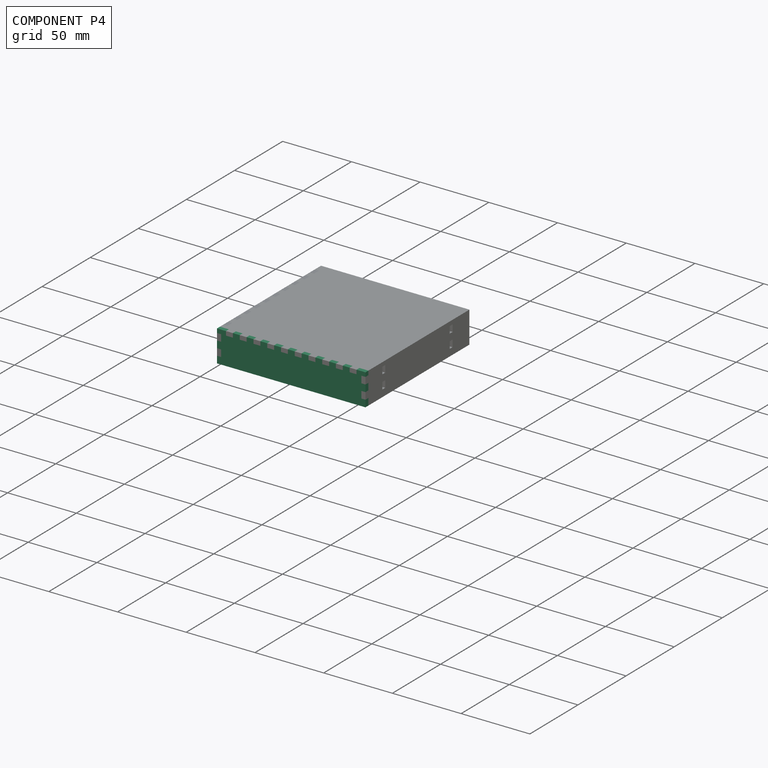
[diagram: component P4 — assembled]
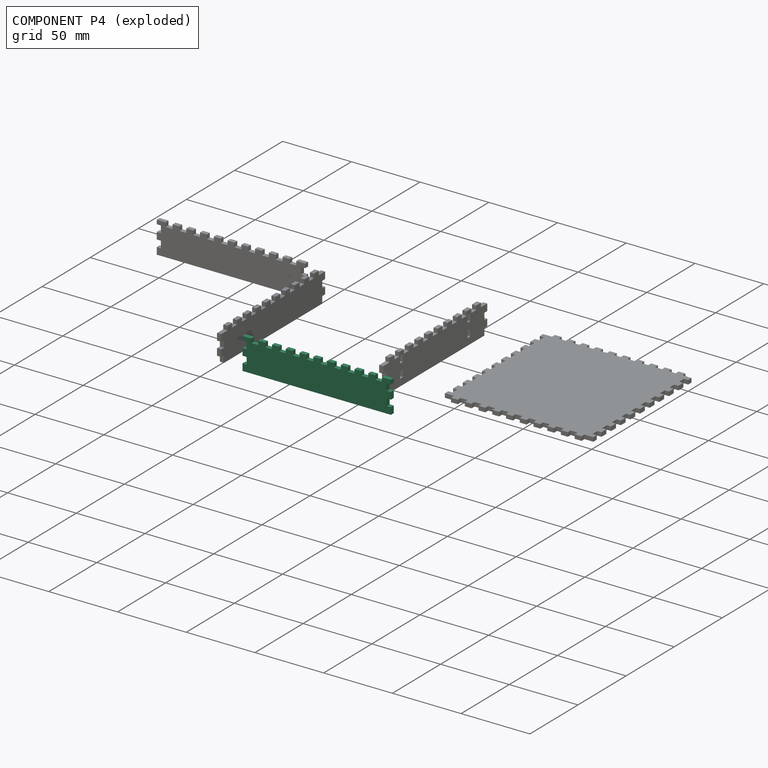
[diagram: component P4 — exploded]
COMPONENT P4 — same part as P3 (CADFS 00596919); its construction recipe is shown at P3.
Held by: FASTENED mate "Fastened 3" to P13; FASTENED mate "Fastened 2" to P15; FASTENED mate "Fastened 3" to P13; FASTENED mate "Fastened 2" to P15.
